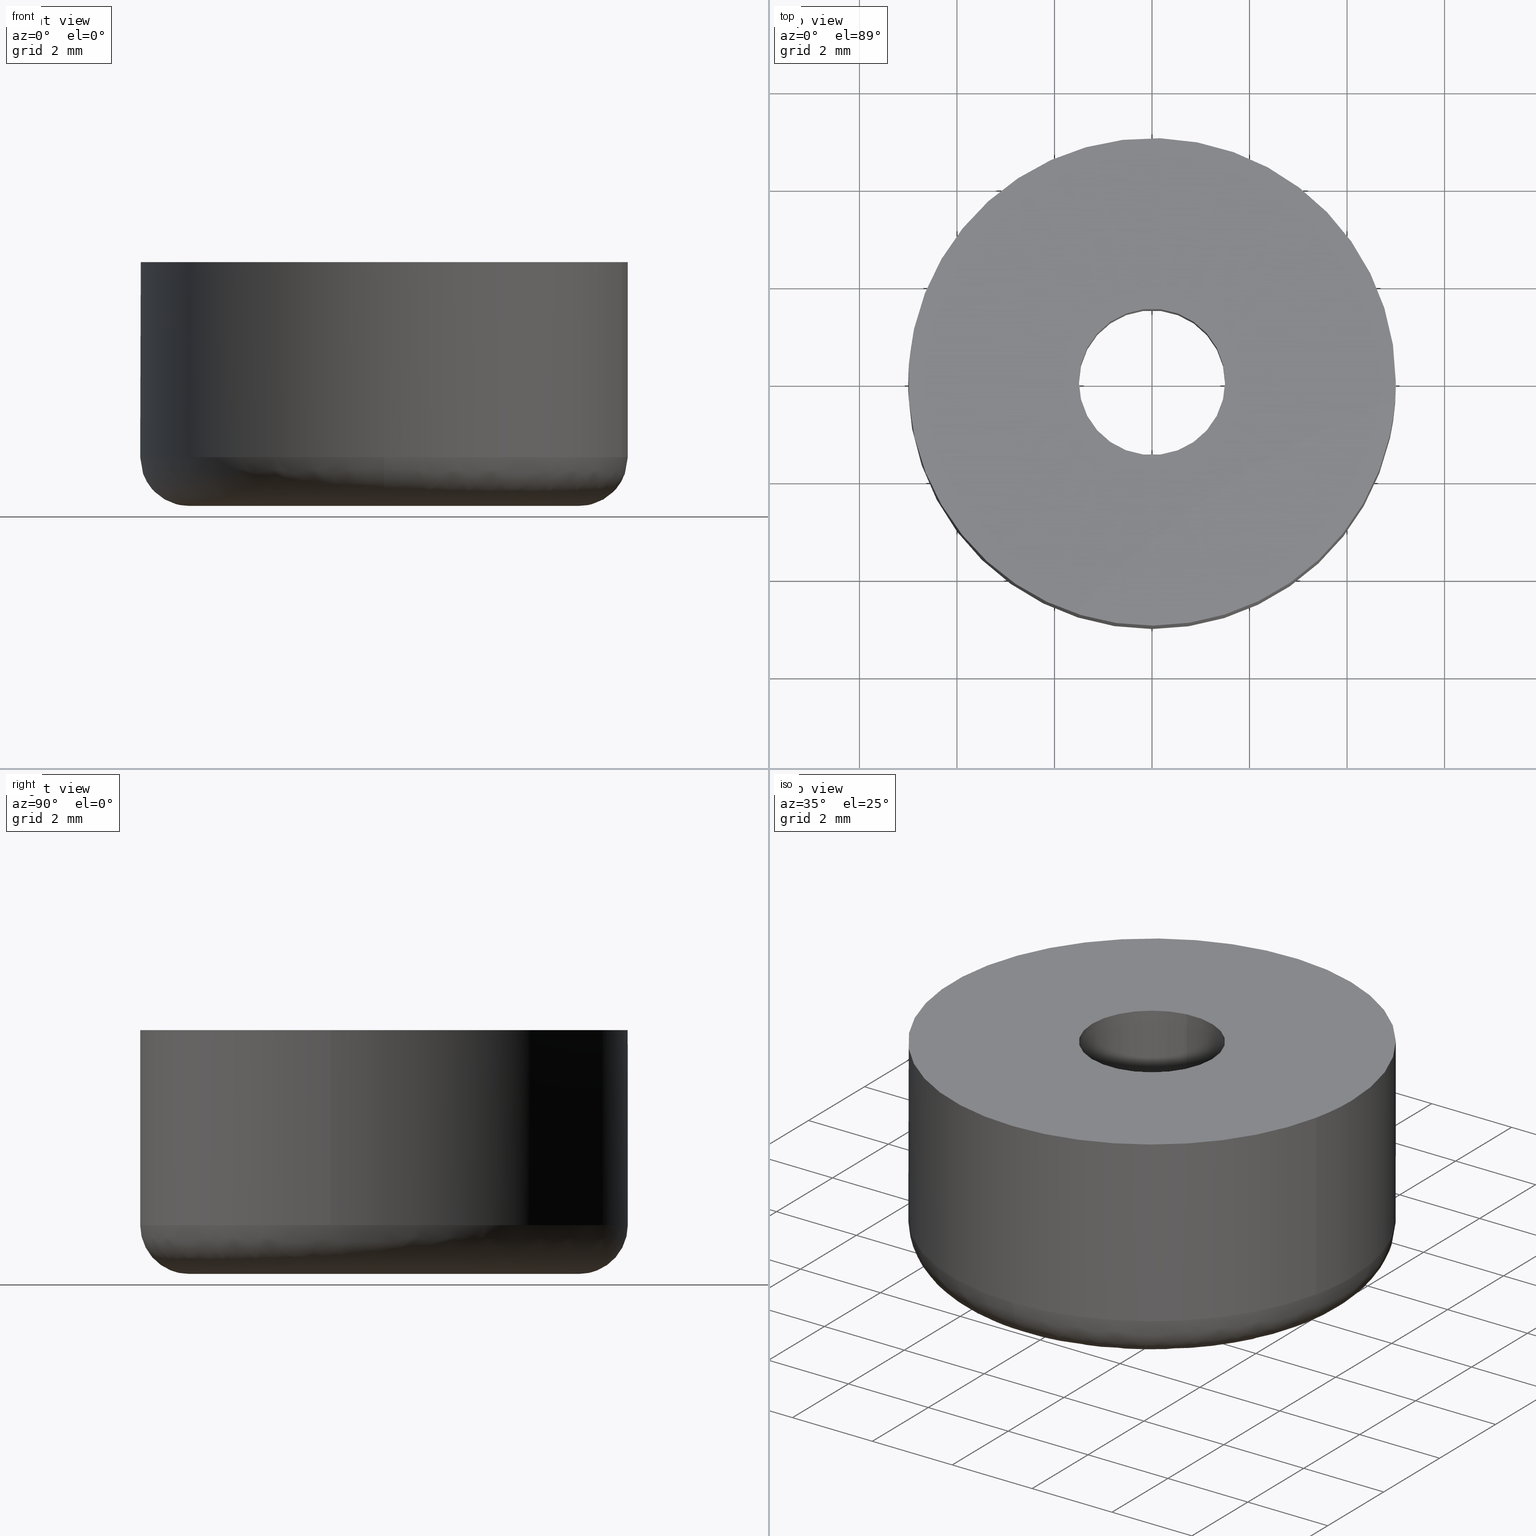
[diagram: canonical four-view strip — front | top / right | iso, engineering-drawing reading convention]
A machine part, canonical four-view strip (front | top / right | iso — engineering-drawing reading convention). The complete STEP part file that produces these views, byte-faithful:
ISO-10303-21;
HEADER;

FILE_DESCRIPTION( (''), '2;1');
FILE_NAME ('PC50.360.TM_TK_10_4141.stp','2019-12-19T16:28:25',(''),(''),'spGate 15.6.1','','');

FILE_SCHEMA (('AUTOMOTIVE_DESIGN'));
ENDSEC;

DATA;
#10=(GEOMETRIC_REPRESENTATION_CONTEXT(3) GLOBAL_UNCERTAINTY_ASSIGNED_CONTEXT((#12)) GLOBAL_UNIT_ASSIGNED_CONTEXT((#13,#14,#15)) REPRESENTATION_CONTEXT('ID1','3D'));
#12=UNCERTAINTY_MEASURE_WITH_UNIT(LENGTH_MEASURE(0.01),#16,'DISTANCE_ACCURACY_VALUE','Maximum model space distance between geometric entities at asserted connectivities');
#13=(NAMED_UNIT(*) SI_UNIT($,.STERADIAN.) SOLID_ANGLE_UNIT());
#14=(CONVERSION_BASED_UNIT('DEGREE',#35) NAMED_UNIT(#36) PLANE_ANGLE_UNIT());
#15=(LENGTH_UNIT() NAMED_UNIT(*) SI_UNIT(.MILLI.,.METRE.));
#16=(LENGTH_UNIT() NAMED_UNIT(*) SI_UNIT(.MILLI.,.METRE.));
#17=AXIS2_PLACEMENT_3D('',#38,#39,#40);
#18=AXIS2_PLACEMENT_3D('',#41,#42,#43);
#19=PRODUCT_DEFINITION('','',#48,#49);
#20=AXIS2_PLACEMENT_3D('',#50,#51,#52);
#21=AXIS2_PLACEMENT_3D('',#53,#54,#55);
#22=SHAPE_REPRESENTATION('Assembly',(#18,#20,#21),#10);
#23=AXIS2_PLACEMENT_3D('',#58,#59,#60);
#24=PRODUCT_DEFINITION('','',#65,#66);
#25=SHAPE_REPRESENTATION('washer',(#23),#10);
#26=ITEM_DEFINED_TRANSFORMATION('','',#20,#23);
#27=(REPRESENTATION_RELATIONSHIP('','',#22,#25) REPRESENTATION_RELATIONSHIP_WITH_TRANSFORMATION(#26) SHAPE_REPRESENTATION_RELATIONSHIP());
#29=AXIS2_PLACEMENT_3D('',#73,#74,#75);
#30=PRODUCT_DEFINITION('','',#80,#81);
#31=SHAPE_REPRESENTATION('rubber foot',(#29),#10);
#32=ITEM_DEFINED_TRANSFORMATION('','',#21,#29);
#33=(REPRESENTATION_RELATIONSHIP('','',#22,#31) REPRESENTATION_RELATIONSHIP_WITH_TRANSFORMATION(#32) SHAPE_REPRESENTATION_RELATIONSHIP());
#35=PLANE_ANGLE_MEASURE_WITH_UNIT(PLANE_ANGLE_MEASURE(0.01745329252),#37);
#36=DIMENSIONAL_EXPONENTS(0.0,0.0,0.0,0.0,0.0,0.0,0.0);
#37=(NAMED_UNIT(*) PLANE_ANGLE_UNIT() SI_UNIT($,.RADIAN.));
#38=CARTESIAN_POINT('',(0.00000000000E+000,0.00000000000E+000,0.00000000000E+000));
#39=DIRECTION('',(0.00000000000E+000,0.00000000000E+000,1.00000000000E+000));
#40=DIRECTION('',(1.00000000000E+000,0.00000000000E+000,0.00000000000E+000));
#41=CARTESIAN_POINT('',(0.00000000000E+000,0.00000000000E+000,0.00000000000E+000));
#42=DIRECTION('',(0.00000000000E+000,0.00000000000E+000,1.00000000000E+000));
#43=DIRECTION('',(1.00000000000E+000,0.00000000000E+000,0.00000000000E+000));
#44=APPLICATION_CONTEXT('configuration controlled 3d designs of mechanical parts and assemblies');
#45=APPLICATION_PROTOCOL_DEFINITION('International Standard','automotive_design',1999,#44);
#46=PRODUCT_CONTEXT('',#44,'');
#47=PRODUCT('Assembly','Assembly','',(#46));
#48=PRODUCT_DEFINITION_FORMATION_WITH_SPECIFIED_SOURCE('','',#47,.NOT_KNOWN.);
#49=PRODUCT_DEFINITION_CONTEXT('design',#44,'');
#50=CARTESIAN_POINT('',(0.00000000000E+000,0.00000000000E+000,0.00000000000E+000));
#51=DIRECTION('',(0.00000000000E+000,0.00000000000E+000,1.00000000000E+000));
#52=DIRECTION('',(1.00000000000E+000,0.00000000000E+000,0.00000000000E+000));
#53=CARTESIAN_POINT('',(0.00000000000E+000,0.00000000000E+000,0.00000000000E+000));
#54=DIRECTION('',(0.00000000000E+000,0.00000000000E+000,1.00000000000E+000));
#55=DIRECTION('',(1.00000000000E+000,0.00000000000E+000,0.00000000000E+000));
#56=PRODUCT_DEFINITION_SHAPE('','',#19);
#57=SHAPE_DEFINITION_REPRESENTATION(#56,#22);
#58=CARTESIAN_POINT('',(0.00000000000E+000,0.00000000000E+000,0.00000000000E+000));
#59=DIRECTION('',(0.00000000000E+000,0.00000000000E+000,1.00000000000E+000));
#60=DIRECTION('',(1.00000000000E+000,0.00000000000E+000,0.00000000000E+000));
#61=APPLICATION_CONTEXT('configuration controlled 3d designs of mechanical parts and assemblies');
#62=APPLICATION_PROTOCOL_DEFINITION('International Standard','automotive_design',1999,#61);
#63=PRODUCT_CONTEXT('',#61,'');
#64=PRODUCT('washer','washer','',(#63));
#65=PRODUCT_DEFINITION_FORMATION_WITH_SPECIFIED_SOURCE('','',#64,.NOT_KNOWN.);
#66=PRODUCT_DEFINITION_CONTEXT('design',#61,'');
#67=PRODUCT_DEFINITION_SHAPE('','',#24);
#68=SHAPE_DEFINITION_REPRESENTATION(#67,#25);
#69=NEXT_ASSEMBLY_USAGE_OCCURRENCE('','','',#19,#24,'');
#70=PRODUCT_DEFINITION_SHAPE('','',#69);
#71=CONTEXT_DEPENDENT_SHAPE_REPRESENTATION(#27,#70);
#73=CARTESIAN_POINT('',(0.00000000000E+000,0.00000000000E+000,0.00000000000E+000));
#74=DIRECTION('',(0.00000000000E+000,0.00000000000E+000,1.00000000000E+000));
#75=DIRECTION('',(1.00000000000E+000,0.00000000000E+000,0.00000000000E+000));
#76=APPLICATION_CONTEXT('configuration controlled 3d designs of mechanical parts and assemblies');
#77=APPLICATION_PROTOCOL_DEFINITION('International Standard','automotive_design',1999,#76);
#78=PRODUCT_CONTEXT('',#76,'');
#79=PRODUCT('rubber foot','rubber foot','',(#78));
#80=PRODUCT_DEFINITION_FORMATION_WITH_SPECIFIED_SOURCE('','',#79,.NOT_KNOWN.);
#81=PRODUCT_DEFINITION_CONTEXT('design',#76,'');
#82=PRODUCT_DEFINITION_SHAPE('','',#30);
#83=SHAPE_DEFINITION_REPRESENTATION(#82,#31);
#84=NEXT_ASSEMBLY_USAGE_OCCURRENCE('','','',#19,#30,'');
#85=PRODUCT_DEFINITION_SHAPE('','',#84);
#86=CONTEXT_DEPENDENT_SHAPE_REPRESENTATION(#33,#85);
#88=SHAPE_REPRESENTATION_RELATIONSHIP('','',#25,#91);
#89=SHAPE_REPRESENTATION_RELATIONSHIP('','',#31,#93);
#90=MANIFOLD_SOLID_BREP('washer',#94);
#91=ADVANCED_BREP_SHAPE_REPRESENTATION('washer',(#90),#10);
#92=MANIFOLD_SOLID_BREP('rubber foot',#103);
#93=ADVANCED_BREP_SHAPE_REPRESENTATION('rubber foot',(#92),#10);
#94=CLOSED_SHELL('',(#112,#113,#114,#115,#116,#117));
#95=COLOUR_RGB('',0.00000000000E+000,0.00000000000E+000,0.00000000000E+000);
#96=FILL_AREA_STYLE_COLOUR('',#95);
#97=FILL_AREA_STYLE('',(#96));
#98=SURFACE_STYLE_FILL_AREA(#97);
#99=SURFACE_SIDE_STYLE('',(#98));
#100=SURFACE_STYLE_USAGE(.BOTH.,#99);
#101=PRESENTATION_STYLE_ASSIGNMENT((#100));
#102=STYLED_ITEM('',(#101),#90);
#103=CLOSED_SHELL('',(#118,#119,#120,#121,#122,#123,#124,#125,#126,#127,#128,#129,#130,#131));
#104=COLOUR_RGB('',0.00000000000E+000,0.00000000000E+000,0.00000000000E+000);
#105=FILL_AREA_STYLE_COLOUR('',#104);
#106=FILL_AREA_STYLE('',(#105));
#107=SURFACE_STYLE_FILL_AREA(#106);
#108=SURFACE_SIDE_STYLE('',(#107));
#109=SURFACE_STYLE_USAGE(.BOTH.,#108);
#110=PRESENTATION_STYLE_ASSIGNMENT((#109));
#111=STYLED_ITEM('',(#110),#92);
#112=ADVANCED_FACE('',(#133,#134),#132,.F.);
#113=ADVANCED_FACE('',(#144,#145),#143,.F.);
#114=ADVANCED_FACE('',(#155),#154,.F.);
#115=ADVANCED_FACE('',(#165),#164,.F.);
#116=ADVANCED_FACE('',(#175),#174,.T.);
#117=ADVANCED_FACE('',(#185),#184,.T.);
#118=ADVANCED_FACE('',(#195,#196),#194,.T.);
#119=ADVANCED_FACE('',(#206,#207),#205,.T.);
#120=ADVANCED_FACE('',(#217,#218),#216,.T.);
#121=ADVANCED_FACE('',(#228,#229),#227,.T.);
#122=ADVANCED_FACE('',(#239),#238,.F.);
#123=ADVANCED_FACE('',(#249),#248,.F.);
#124=ADVANCED_FACE('',(#259),#258,.F.);
#125=ADVANCED_FACE('',(#269),#268,.F.);
#126=ADVANCED_FACE('',(#279),#278,.F.);
#127=ADVANCED_FACE('',(#289),#288,.F.);
#128=ADVANCED_FACE('',(#299),#298,.T.);
#129=ADVANCED_FACE('',(#309),#308,.T.);
#130=ADVANCED_FACE('',(#319),#318,.T.);
#131=ADVANCED_FACE('',(#329),#328,.T.);
#132=PLANE('',#341);
#133=FACE_OUTER_BOUND('',#342,.T.);
#134=FACE_BOUND('',#343,.T.);
#135=COLOUR_RGB('',1.00000000000E+000,1.00000000000E+000,1.00000000000E+000);
#136=FILL_AREA_STYLE_COLOUR('',#135);
#137=FILL_AREA_STYLE('',(#136));
#138=SURFACE_STYLE_FILL_AREA(#137);
#139=SURFACE_SIDE_STYLE('',(#138));
#140=SURFACE_STYLE_USAGE(.BOTH.,#139);
#141=PRESENTATION_STYLE_ASSIGNMENT((#140));
#142=STYLED_ITEM('',(#141),#112);
#143=PLANE('',#347);
#144=FACE_OUTER_BOUND('',#348,.T.);
#145=FACE_BOUND('',#349,.T.);
#146=COLOUR_RGB('',1.00000000000E+000,1.00000000000E+000,1.00000000000E+000);
#147=FILL_AREA_STYLE_COLOUR('',#146);
#148=FILL_AREA_STYLE('',(#147));
#149=SURFACE_STYLE_FILL_AREA(#148);
#150=SURFACE_SIDE_STYLE('',(#149));
#151=SURFACE_STYLE_USAGE(.BOTH.,#150);
#152=PRESENTATION_STYLE_ASSIGNMENT((#151));
#153=STYLED_ITEM('',(#152),#113);
#154=CYLINDRICAL_SURFACE('',#353,1.50000000000E+000);
#155=FACE_OUTER_BOUND('',#354,.T.);
#156=COLOUR_RGB('',1.00000000000E+000,1.00000000000E+000,1.00000000000E+000);
#157=FILL_AREA_STYLE_COLOUR('',#156);
#158=FILL_AREA_STYLE('',(#157));
#159=SURFACE_STYLE_FILL_AREA(#158);
#160=SURFACE_SIDE_STYLE('',(#159));
#161=SURFACE_STYLE_USAGE(.BOTH.,#160);
#162=PRESENTATION_STYLE_ASSIGNMENT((#161));
#163=STYLED_ITEM('',(#162),#114);
#164=CYLINDRICAL_SURFACE('',#358,1.50000000000E+000);
#165=FACE_OUTER_BOUND('',#359,.T.);
#166=COLOUR_RGB('',1.00000000000E+000,1.00000000000E+000,1.00000000000E+000);
#167=FILL_AREA_STYLE_COLOUR('',#166);
#168=FILL_AREA_STYLE('',(#167));
#169=SURFACE_STYLE_FILL_AREA(#168);
#170=SURFACE_SIDE_STYLE('',(#169));
#171=SURFACE_STYLE_USAGE(.BOTH.,#170);
#172=PRESENTATION_STYLE_ASSIGNMENT((#171));
#173=STYLED_ITEM('',(#172),#115);
#174=CYLINDRICAL_SURFACE('',#363,4.00000000000E+000);
#175=FACE_OUTER_BOUND('',#364,.T.);
#176=COLOUR_RGB('',1.00000000000E+000,1.00000000000E+000,1.00000000000E+000);
#177=FILL_AREA_STYLE_COLOUR('',#176);
#178=FILL_AREA_STYLE('',(#177));
#179=SURFACE_STYLE_FILL_AREA(#178);
#180=SURFACE_SIDE_STYLE('',(#179));
#181=SURFACE_STYLE_USAGE(.BOTH.,#180);
#182=PRESENTATION_STYLE_ASSIGNMENT((#181));
#183=STYLED_ITEM('',(#182),#116);
#184=CYLINDRICAL_SURFACE('',#368,4.00000000000E+000);
#185=FACE_OUTER_BOUND('',#369,.T.);
#186=COLOUR_RGB('',1.00000000000E+000,1.00000000000E+000,1.00000000000E+000);
#187=FILL_AREA_STYLE_COLOUR('',#186);
#188=FILL_AREA_STYLE('',(#187));
#189=SURFACE_STYLE_FILL_AREA(#188);
#190=SURFACE_SIDE_STYLE('',(#189));
#191=SURFACE_STYLE_USAGE(.BOTH.,#190);
#192=PRESENTATION_STYLE_ASSIGNMENT((#191));
#193=STYLED_ITEM('',(#192),#117);
#194=PLANE('',#373);
#195=FACE_OUTER_BOUND('',#374,.T.);
#196=FACE_BOUND('',#375,.T.);
#197=COLOUR_RGB('',1.00000000000E+000,1.00000000000E+000,1.00000000000E+000);
#198=FILL_AREA_STYLE_COLOUR('',#197);
#199=FILL_AREA_STYLE('',(#198));
#200=SURFACE_STYLE_FILL_AREA(#199);
#201=SURFACE_SIDE_STYLE('',(#200));
#202=SURFACE_STYLE_USAGE(.BOTH.,#201);
#203=PRESENTATION_STYLE_ASSIGNMENT((#202));
#204=STYLED_ITEM('',(#203),#118);
#205=PLANE('',#379);
#206=FACE_OUTER_BOUND('',#380,.T.);
#207=FACE_BOUND('',#381,.T.);
#208=COLOUR_RGB('',1.00000000000E+000,1.00000000000E+000,1.00000000000E+000);
#209=FILL_AREA_STYLE_COLOUR('',#208);
#210=FILL_AREA_STYLE('',(#209));
#211=SURFACE_STYLE_FILL_AREA(#210);
#212=SURFACE_SIDE_STYLE('',(#211));
#213=SURFACE_STYLE_USAGE(.BOTH.,#212);
#214=PRESENTATION_STYLE_ASSIGNMENT((#213));
#215=STYLED_ITEM('',(#214),#119);
#216=PLANE('',#385);
#217=FACE_OUTER_BOUND('',#386,.T.);
#218=FACE_BOUND('',#387,.T.);
#219=COLOUR_RGB('',1.00000000000E+000,1.00000000000E+000,1.00000000000E+000);
#220=FILL_AREA_STYLE_COLOUR('',#219);
#221=FILL_AREA_STYLE('',(#220));
#222=SURFACE_STYLE_FILL_AREA(#221);
#223=SURFACE_SIDE_STYLE('',(#222));
#224=SURFACE_STYLE_USAGE(.BOTH.,#223);
#225=PRESENTATION_STYLE_ASSIGNMENT((#224));
#226=STYLED_ITEM('',(#225),#120);
#227=PLANE('',#391);
#228=FACE_OUTER_BOUND('',#392,.T.);
#229=FACE_BOUND('',#393,.T.);
#230=COLOUR_RGB('',1.00000000000E+000,1.00000000000E+000,1.00000000000E+000);
#231=FILL_AREA_STYLE_COLOUR('',#230);
#232=FILL_AREA_STYLE('',(#231));
#233=SURFACE_STYLE_FILL_AREA(#232);
#234=SURFACE_SIDE_STYLE('',(#233));
#235=SURFACE_STYLE_USAGE(.BOTH.,#234);
#236=PRESENTATION_STYLE_ASSIGNMENT((#235));
#237=STYLED_ITEM('',(#236),#121);
#238=CYLINDRICAL_SURFACE('',#397,2.50000000000E+000);
#239=FACE_OUTER_BOUND('',#398,.T.);
#240=COLOUR_RGB('',1.00000000000E+000,1.00000000000E+000,1.00000000000E+000);
#241=FILL_AREA_STYLE_COLOUR('',#240);
#242=FILL_AREA_STYLE('',(#241));
#243=SURFACE_STYLE_FILL_AREA(#242);
#244=SURFACE_SIDE_STYLE('',(#243));
#245=SURFACE_STYLE_USAGE(.BOTH.,#244);
#246=PRESENTATION_STYLE_ASSIGNMENT((#245));
#247=STYLED_ITEM('',(#246),#122);
#248=CYLINDRICAL_SURFACE('',#402,2.50000000000E+000);
#249=FACE_OUTER_BOUND('',#403,.T.);
#250=COLOUR_RGB('',1.00000000000E+000,1.00000000000E+000,1.00000000000E+000);
#251=FILL_AREA_STYLE_COLOUR('',#250);
#252=FILL_AREA_STYLE('',(#251));
#253=SURFACE_STYLE_FILL_AREA(#252);
#254=SURFACE_SIDE_STYLE('',(#253));
#255=SURFACE_STYLE_USAGE(.BOTH.,#254);
#256=PRESENTATION_STYLE_ASSIGNMENT((#255));
#257=STYLED_ITEM('',(#256),#123);
#258=CYLINDRICAL_SURFACE('',#407,4.00000000000E+000);
#259=FACE_OUTER_BOUND('',#408,.T.);
#260=COLOUR_RGB('',1.00000000000E+000,1.00000000000E+000,1.00000000000E+000);
#261=FILL_AREA_STYLE_COLOUR('',#260);
#262=FILL_AREA_STYLE('',(#261));
#263=SURFACE_STYLE_FILL_AREA(#262);
#264=SURFACE_SIDE_STYLE('',(#263));
#265=SURFACE_STYLE_USAGE(.BOTH.,#264);
#266=PRESENTATION_STYLE_ASSIGNMENT((#265));
#267=STYLED_ITEM('',(#266),#124);
#268=CYLINDRICAL_SURFACE('',#412,4.00000000000E+000);
#269=FACE_OUTER_BOUND('',#413,.T.);
#270=COLOUR_RGB('',1.00000000000E+000,1.00000000000E+000,1.00000000000E+000);
#271=FILL_AREA_STYLE_COLOUR('',#270);
#272=FILL_AREA_STYLE('',(#271));
#273=SURFACE_STYLE_FILL_AREA(#272);
#274=SURFACE_SIDE_STYLE('',(#273));
#275=SURFACE_STYLE_USAGE(.BOTH.,#274);
#276=PRESENTATION_STYLE_ASSIGNMENT((#275));
#277=STYLED_ITEM('',(#276),#125);
#278=CYLINDRICAL_SURFACE('',#417,1.50000000000E+000);
#279=FACE_OUTER_BOUND('',#418,.T.);
#280=COLOUR_RGB('',1.00000000000E+000,1.00000000000E+000,1.00000000000E+000);
#281=FILL_AREA_STYLE_COLOUR('',#280);
#282=FILL_AREA_STYLE('',(#281));
#283=SURFACE_STYLE_FILL_AREA(#282);
#284=SURFACE_SIDE_STYLE('',(#283));
#285=SURFACE_STYLE_USAGE(.BOTH.,#284);
#286=PRESENTATION_STYLE_ASSIGNMENT((#285));
#287=STYLED_ITEM('',(#286),#126);
#288=CYLINDRICAL_SURFACE('',#422,1.50000000000E+000);
#289=FACE_OUTER_BOUND('',#423,.T.);
#290=COLOUR_RGB('',1.00000000000E+000,1.00000000000E+000,1.00000000000E+000);
#291=FILL_AREA_STYLE_COLOUR('',#290);
#292=FILL_AREA_STYLE('',(#291));
#293=SURFACE_STYLE_FILL_AREA(#292);
#294=SURFACE_SIDE_STYLE('',(#293));
#295=SURFACE_STYLE_USAGE(.BOTH.,#294);
#296=PRESENTATION_STYLE_ASSIGNMENT((#295));
#297=STYLED_ITEM('',(#296),#127);
#298=CYLINDRICAL_SURFACE('',#427,5.00000223932E+000);
#299=FACE_OUTER_BOUND('',#428,.T.);
#300=COLOUR_RGB('',1.00000000000E+000,1.00000000000E+000,1.00000000000E+000);
#301=FILL_AREA_STYLE_COLOUR('',#300);
#302=FILL_AREA_STYLE('',(#301));
#303=SURFACE_STYLE_FILL_AREA(#302);
#304=SURFACE_SIDE_STYLE('',(#303));
#305=SURFACE_STYLE_USAGE(.BOTH.,#304);
#306=PRESENTATION_STYLE_ASSIGNMENT((#305));
#307=STYLED_ITEM('',(#306),#128);
#308=CYLINDRICAL_SURFACE('',#432,5.00000223932E+000);
#309=FACE_OUTER_BOUND('',#433,.T.);
#310=COLOUR_RGB('',1.00000000000E+000,1.00000000000E+000,1.00000000000E+000);
#311=FILL_AREA_STYLE_COLOUR('',#310);
#312=FILL_AREA_STYLE('',(#311));
#313=SURFACE_STYLE_FILL_AREA(#312);
#314=SURFACE_SIDE_STYLE('',(#313));
#315=SURFACE_STYLE_USAGE(.BOTH.,#314);
#316=PRESENTATION_STYLE_ASSIGNMENT((#315));
#317=STYLED_ITEM('',(#316),#129);
#318=( BOUNDED_SURFACE() B_SPLINE_SURFACE( 2,2,((#434,#435,#436,#437,#438),(#439,#440,#441,#442,#443),(#444,#445,#446,#447,#448),(#449,#450,#451,#452,#453),(#454,#455,#456,#457,#458)), .UNSPECIFIED.,.F.,.F.,.F.) B_SPLINE_SURFACE_WITH_KNOTS((3,2,3),(3,2,3),(-5.02449880769E-006,1.04719587636E+000,1.57079946771E+000),(0.00000000000E+000,1.57079632679E+000,3.14159265359E+000), .UNSPECIFIED. ) GEOMETRIC_REPRESENTATION_ITEM() RATIONAL_B_SPLINE_SURFACE(((1.00000000000E+000,7.07106781187E-001,1.00000000000E+000,7.07106781187E-001,1.00000000000E+000),(8.66024566367E-001,6.12371843552E-001,8.66024566367E-001,6.12371843552E-001,8.66024566367E-001),(1.00000000000E+000,7.07106781187E-001,1.00000000000E+000,7.07106781187E-001,1.00000000000E+000),(9.33011881345E-001,6.59739028227E-001,9.33011881345E-001,6.59739028227E-001,9.33011881345E-001),(9.33012283186E-001,6.59739312371E-001,9.33012283186E-001,6.59739312371E-001,9.33012283186E-001))) REPRESENTATION_ITEM('') SURFACE() );
#319=FACE_OUTER_BOUND('',#459,.T.);
#320=COLOUR_RGB('',1.00000000000E+000,1.00000000000E+000,1.00000000000E+000);
#321=FILL_AREA_STYLE_COLOUR('',#320);
#322=FILL_AREA_STYLE('',(#321));
#323=SURFACE_STYLE_FILL_AREA(#322);
#324=SURFACE_SIDE_STYLE('',(#323));
#325=SURFACE_STYLE_USAGE(.BOTH.,#324);
#326=PRESENTATION_STYLE_ASSIGNMENT((#325));
#327=STYLED_ITEM('',(#326),#130);
#328=( BOUNDED_SURFACE() B_SPLINE_SURFACE( 2,2,((#460,#461,#462,#463,#464),(#465,#466,#467,#468,#469),(#470,#471,#472,#473,#474),(#475,#476,#477,#478,#479),(#480,#481,#482,#483,#484)), .UNSPECIFIED.,.F.,.F.,.F.) B_SPLINE_SURFACE_WITH_KNOTS((3,2,3),(3,2,3),(-5.02449880769E-006,1.04719587636E+000,1.57079645909E+000),(3.14159265359E+000,4.71238898038E+000,6.28318530718E+000), .UNSPECIFIED. ) GEOMETRIC_REPRESENTATION_ITEM() RATIONAL_B_SPLINE_SURFACE(((1.00000000000E+000,7.07106781187E-001,1.00000000000E+000,7.07106781187E-001,1.00000000000E+000),(8.66024566367E-001,6.12371843552E-001,8.66024566367E-001,6.12371843552E-001,8.66024566367E-001),(1.00000000000E+000,7.07106781187E-001,1.00000000000E+000,7.07106781187E-001,1.00000000000E+000),(9.33012266257E-001,6.59739300401E-001,9.33012266257E-001,6.59739300401E-001,9.33012266257E-001),(9.33012283183E-001,6.59739312369E-001,9.33012283183E-001,6.59739312369E-001,9.33012283183E-001))) REPRESENTATION_ITEM('') SURFACE() );
#329=FACE_OUTER_BOUND('',#485,.T.);
#330=COLOUR_RGB('',1.00000000000E+000,1.00000000000E+000,1.00000000000E+000);
#331=FILL_AREA_STYLE_COLOUR('',#330);
#332=FILL_AREA_STYLE('',(#331));
#333=SURFACE_STYLE_FILL_AREA(#332);
#334=SURFACE_SIDE_STYLE('',(#333));
#335=SURFACE_STYLE_USAGE(.BOTH.,#334);
#336=PRESENTATION_STYLE_ASSIGNMENT((#335));
#337=STYLED_ITEM('',(#336),#131);
#338=CARTESIAN_POINT('',(9.20000000000E+000,-8.31384387633E+000,3.50000000000E+000));
#339=DIRECTION('',(0.00000000000E+000,0.00000000000E+000,-1.00000000000E+000));
#340=DIRECTION('',(-1.00000000000E+000,0.00000000000E+000,0.00000000000E+000));
#341=AXIS2_PLACEMENT_3D('',#338,#339,#340);
#342=EDGE_LOOP('',(#486,#487,#488));
#343=EDGE_LOOP('',(#489,#490,#491));
#344=CARTESIAN_POINT('',(-5.20000000000E+000,-8.31384387633E+000,3.00000000000E+000));
#345=DIRECTION('',(0.00000000000E+000,0.00000000000E+000,1.00000000000E+000));
#346=DIRECTION('',(1.00000000000E+000,0.00000000000E+000,0.00000000000E+000));
#347=AXIS2_PLACEMENT_3D('',#344,#345,#346);
#348=EDGE_LOOP('',(#492,#493,#494));
#349=EDGE_LOOP('',(#495,#496,#497));
#350=CARTESIAN_POINT('',(3.89981910366E-015,8.44976319764E-016,3.51250000000E+000));
#351=DIRECTION('',(1.63270326226E-014,1.94071531910E-015,1.00000000000E+000));
#352=DIRECTION('',(1.18034234657E-001,-9.93009526364E-001,-4.73316543133E-029));
#353=AXIS2_PLACEMENT_3D('',#350,#351,#352);
#354=EDGE_LOOP('',(#498,#499,#500,#501));
#355=CARTESIAN_POINT('',(3.89981910366E-015,8.44976319764E-016,3.51250000000E+000));
#356=DIRECTION('',(1.63270326226E-014,1.94071531910E-015,1.00000000000E+000));
#357=DIRECTION('',(1.18034234657E-001,-9.93009526364E-001,-4.73316543133E-029));
#358=AXIS2_PLACEMENT_3D('',#355,#356,#357);
#359=EDGE_LOOP('',(#502,#503,#504,#505,#506,#507));
#360=CARTESIAN_POINT('',(1.58368502626E-015,4.30935982100E-016,3.51250000000E+000));
#361=DIRECTION('',(6.13516945391E-015,7.29257889029E-016,1.00000000000E+000));
#362=DIRECTION('',(1.18034234657E-001,-9.93009526364E-001,-2.56379794197E-030));
#363=AXIS2_PLACEMENT_3D('',#360,#361,#362);
#364=EDGE_LOOP('',(#508,#509,#510,#511));
#365=CARTESIAN_POINT('',(1.58368502626E-015,4.30935982100E-016,3.51250000000E+000));
#366=DIRECTION('',(6.13516945391E-015,7.29257889029E-016,1.00000000000E+000));
#367=DIRECTION('',(1.18034234657E-001,-9.93009526364E-001,-2.56379794197E-030));
#368=AXIS2_PLACEMENT_3D('',#365,#366,#367);
#369=EDGE_LOOP('',(#512,#513,#514,#515,#516,#517));
#370=CARTESIAN_POINT('',(9.20000000022E+000,-8.31384387667E+000,0.00000000000E+000));
#371=DIRECTION('',(0.00000000000E+000,0.00000000000E+000,-1.00000000000E+000));
#372=DIRECTION('',(-1.00000000000E+000,0.00000000000E+000,0.00000000000E+000));
#373=AXIS2_PLACEMENT_3D('',#370,#371,#372);
#374=EDGE_LOOP('',(#518,#519,#520));
#375=EDGE_LOOP('',(#521,#522,#523));
#376=CARTESIAN_POINT('',(-5.20000000000E+000,-8.31384387633E+000,3.00000000000E+000));
#377=DIRECTION('',(0.00000000000E+000,0.00000000000E+000,1.00000000000E+000));
#378=DIRECTION('',(1.00000000000E+000,0.00000000000E+000,0.00000000000E+000));
#379=AXIS2_PLACEMENT_3D('',#376,#377,#378);
#380=EDGE_LOOP('',(#524,#525,#526));
#381=EDGE_LOOP('',(#527,#528,#529));
#382=CARTESIAN_POINT('',(9.19999970148E+000,-8.31384333067E+000,3.50000000000E+000));
#383=DIRECTION('',(0.00000000000E+000,0.00000000000E+000,-1.00000000000E+000));
#384=DIRECTION('',(-1.00000000000E+000,0.00000000000E+000,0.00000000000E+000));
#385=AXIS2_PLACEMENT_3D('',#382,#383,#384);
#386=EDGE_LOOP('',(#530,#531,#532));
#387=EDGE_LOOP('',(#533,#534,#535));
#388=CARTESIAN_POINT('',(-1.15000000000E+001,-1.03923048454E+001,5.00000000000E+000));
#389=DIRECTION('',(0.00000000000E+000,0.00000000000E+000,1.00000000000E+000));
#390=DIRECTION('',(1.00000000000E+000,0.00000000000E+000,0.00000000000E+000));
#391=AXIS2_PLACEMENT_3D('',#388,#389,#390);
#392=EDGE_LOOP('',(#536,#537,#538));
#393=EDGE_LOOP('',(#539,#540,#541));
#394=CARTESIAN_POINT('',(4.33468580467E-015,4.89105161793E-016,3.07500000000E+000));
#395=DIRECTION('',(2.58322924375E-015,3.07055953275E-016,1.00000000000E+000));
#396=DIRECTION('',(1.18034234657E-001,-9.93009526364E-001,-4.28943117214E-030));
#397=AXIS2_PLACEMENT_3D('',#394,#395,#396);
#398=EDGE_LOOP('',(#542,#543,#544,#545));
#399=CARTESIAN_POINT('',(4.33468580467E-015,4.89105161793E-016,3.07500000000E+000));
#400=DIRECTION('',(2.58322924375E-015,3.07055953275E-016,1.00000000000E+000));
#401=DIRECTION('',(1.18034234657E-001,-9.93009526364E-001,-4.28943117214E-030));
#402=AXIS2_PLACEMENT_3D('',#399,#400,#401);
#403=EDGE_LOOP('',(#546,#547,#548,#549,#550,#551));
#404=CARTESIAN_POINT('',(1.58368502626E-015,4.30935982100E-016,3.51250000000E+000));
#405=DIRECTION('',(6.13516945391E-015,7.29257889029E-016,1.00000000000E+000));
#406=DIRECTION('',(1.18034234657E-001,-9.93009526364E-001,-2.56379794197E-030));
#407=AXIS2_PLACEMENT_3D('',#404,#405,#406);
#408=EDGE_LOOP('',(#552,#553,#554,#555));
#409=CARTESIAN_POINT('',(1.58368502626E-015,4.30935982100E-016,3.51250000000E+000));
#410=DIRECTION('',(6.13516945391E-015,7.29257889029E-016,1.00000000000E+000));
#411=DIRECTION('',(1.18034234657E-001,-9.93009526364E-001,-2.56379794197E-030));
#412=AXIS2_PLACEMENT_3D('',#409,#410,#411);
#413=EDGE_LOOP('',(#556,#557,#558,#559,#560,#561));
#414=CARTESIAN_POINT('',(5.40075811046E-015,1.02338567258E-015,5.03750000000E+000));
#415=DIRECTION('',(7.34716468017E-015,8.73321893594E-016,1.00000000000E+000));
#416=DIRECTION('',(1.18034234657E-001,-9.93009526364E-001,-2.87934230406E-029));
#417=AXIS2_PLACEMENT_3D('',#414,#415,#416);
#418=EDGE_LOOP('',(#562,#563,#564,#565));
#419=CARTESIAN_POINT('',(5.40075811046E-015,1.02338567258E-015,5.03750000000E+000));
#420=DIRECTION('',(7.34716468017E-015,8.73321893594E-016,1.00000000000E+000));
#421=DIRECTION('',(1.18034234657E-001,-9.93009526364E-001,-2.87934230406E-029));
#422=AXIS2_PLACEMENT_3D('',#419,#420,#421);
#423=EDGE_LOOP('',(#566,#567,#568,#569,#570,#571));
#424=CARTESIAN_POINT('',(-1.82499951851E-006,2.10261817881E-006,5.00000000000E+000));
#425=DIRECTION('',(-3.91191233359E-016,2.85891110639E-016,1.00000000000E+000));
#426=DIRECTION('',(-9.75968852868E-001,2.17910069136E-001,-4.44089010958E-016));
#427=AXIS2_PLACEMENT_3D('',#424,#425,#426);
#428=EDGE_LOOP('',(#572,#573,#574,#575,#576,#577,#578));
#429=CARTESIAN_POINT('',(-1.82499951851E-006,2.10261817881E-006,5.00000000000E+000));
#430=DIRECTION('',(-3.91191233359E-016,2.85891110639E-016,1.00000000000E+000));
#431=DIRECTION('',(-9.75968852868E-001,2.17910069136E-001,-4.44089010958E-016));
#432=AXIS2_PLACEMENT_3D('',#429,#430,#431);
#433=EDGE_LOOP('',(#579,#580,#581,#582,#583,#584,#585,#586));
#434=CARTESIAN_POINT('',(-1.05465745083E-015,-4.99999999999E+000,1.00000502450E+000));
#435=CARTESIAN_POINT('',(4.99999999999E+000,-4.99999999999E+000,1.00000502450E+000));
#436=CARTESIAN_POINT('',(4.99999999999E+000,2.34702687631E-015,1.00000502450E+000));
#437=CARTESIAN_POINT('',(4.99999999999E+000,4.99999999999E+000,1.00000502450E+000));
#438=CARTESIAN_POINT('',(-2.27926380464E-015,4.99999999999E+000,1.00000502450E+000));
#439=CARTESIAN_POINT('',(-1.07907052029E-015,-5.00000290089E+000,4.22652522204E-001));
#440=CARTESIAN_POINT('',(5.00000290089E+000,-5.00000290089E+000,4.22652522204E-001));
#441=CARTESIAN_POINT('',(5.00000290089E+000,2.32135474550E-015,4.22652522204E-001));
#442=CARTESIAN_POINT('',(5.00000290089E+000,5.00000290089E+000,4.22652522204E-001));
#443=CARTESIAN_POINT('',(-2.30367758460E-015,5.00000290089E+000,4.22652522204E-001));
#444=CARTESIAN_POINT('',(-1.15250776337E-015,-4.50000145045E+000,1.33975433633E-001));
#445=CARTESIAN_POINT('',(4.50000145045E+000,-4.50000145045E+000,1.33975433633E-001));
#446=CARTESIAN_POINT('',(4.50000145045E+000,2.24728796992E-015,1.33975433633E-001));
#447=CARTESIAN_POINT('',(4.50000145045E+000,4.50000145045E+000,1.33975433633E-001));
#448=CARTESIAN_POINT('',(-2.25465383705E-015,4.50000145045E+000,1.33975433633E-001));
#449=CARTESIAN_POINT('',(-1.18659030796E-015,-4.26794859803E+000,-8.61378442946E-007));
#450=CARTESIAN_POINT('',(4.26794859803E+000,-4.26794859803E+000,-8.61378443120E-007));
#451=CARTESIAN_POINT('',(4.26794859803E+000,2.21291325656E-015,-8.61378443348E-007));
#452=CARTESIAN_POINT('',(4.26794859803E+000,4.26794859803E+000,-8.61378443541E-007));
#453=CARTESIAN_POINT('',(-2.23190170214E-015,4.26794859803E+000,-8.61378443378E-007));
#454=CARTESIAN_POINT('',(-1.21940382077E-015,-3.99999678530E+000,5.16981244410E-012));
#455=CARTESIAN_POINT('',(3.99999678530E+000,-3.99999678530E+000,5.16964354738E-012));
#456=CARTESIAN_POINT('',(3.99999678530E+000,2.18009974562E-015,5.16945546424E-012));
#457=CARTESIAN_POINT('',(3.99999678530E+000,3.99999678530E+000,5.16928068955E-012));
#458=CARTESIAN_POINT('',(-2.19908811648E-015,3.99999678530E+000,5.16944059012E-012));
#459=EDGE_LOOP('',(#587,#588,#589,#590,#591,#592));
#460=CARTESIAN_POINT('',(-2.27926380464E-015,4.99999999999E+000,1.00000502450E+000));
#461=CARTESIAN_POINT('',(-4.99999999999E+000,4.99999999999E+000,1.00000502450E+000));
#462=CARTESIAN_POINT('',(-4.99999999999E+000,1.12242052249E-015,1.00000502450E+000));
#463=CARTESIAN_POINT('',(-4.99999999999E+000,-4.99999999999E+000,1.00000502450E+000));
#464=CARTESIAN_POINT('',(-1.05465745083E-015,-4.99999999999E+000,1.00000502450E+000));
#465=CARTESIAN_POINT('',(-2.30367758460E-015,5.00000290089E+000,4.22652522204E-001));
#466=CARTESIAN_POINT('',(-5.00000290089E+000,5.00000290089E+000,4.22652522204E-001));
#467=CARTESIAN_POINT('',(-5.00000290089E+000,1.09674768119E-015,4.22652522204E-001));
#468=CARTESIAN_POINT('',(-5.00000290089E+000,-5.00000290089E+000,4.22652522204E-001));
#469=CARTESIAN_POINT('',(-1.07907052029E-015,-5.00000290089E+000,4.22652522204E-001));
#470=CARTESIAN_POINT('',(-2.25465383705E-015,4.50000145045E+000,1.33975433633E-001));
#471=CARTESIAN_POINT('',(-4.50000145045E+000,4.50000145045E+000,1.33975433633E-001));
#472=CARTESIAN_POINT('',(-4.50000145045E+000,1.14514189624E-015,1.33975433633E-001));
#473=CARTESIAN_POINT('',(-4.50000145045E+000,-4.50000145045E+000,1.33975433633E-001));
#474=CARTESIAN_POINT('',(-1.15250776337E-015,-4.50000145045E+000,1.33975433633E-001));
#475=CARTESIAN_POINT('',(-2.23190184226E-015,4.26795002713E+000,-3.62823375291E-008));
#476=CARTESIAN_POINT('',(-4.26795002713E+000,4.26795002713E+000,-3.62823373136E-008));
#477=CARTESIAN_POINT('',(-4.26795002713E+000,1.16760172405E-015,-3.62823371275E-008));
#478=CARTESIAN_POINT('',(-4.26795002713E+000,-4.26795002713E+000,-3.62823368929E-008));
#479=CARTESIAN_POINT('',(-1.18659009806E-015,-4.26795002713E+000,-3.62823370978E-008));
#480=CARTESIAN_POINT('',(-2.19908849357E-015,3.99999986459E+000,1.14730356870E-014));
#481=CARTESIAN_POINT('',(-3.99999986459E+000,3.99999986459E+000,1.16549580484E-014));
#482=CARTESIAN_POINT('',(-3.99999986459E+000,1.20041507282E-015,1.18300158720E-014));
#483=CARTESIAN_POINT('',(-3.99999986459E+000,-3.99999986459E+000,1.20125574492E-014));
#484=CARTESIAN_POINT('',(-1.21940344368E-015,-3.99999986459E+000,1.18448900433E-014));
#485=EDGE_LOOP('',(#593,#594,#595,#596,#597,#598,#599,#600,#601));
#486=ORIENTED_EDGE('',*,*,#602,.F.);
#487=ORIENTED_EDGE('',*,*,#603,.F.);
#488=ORIENTED_EDGE('',*,*,#604,.F.);
#489=ORIENTED_EDGE('',*,*,#605,.T.);
#490=ORIENTED_EDGE('',*,*,#606,.T.);
#491=ORIENTED_EDGE('',*,*,#607,.T.);
#492=ORIENTED_EDGE('',*,*,#608,.T.);
#493=ORIENTED_EDGE('',*,*,#609,.T.);
#494=ORIENTED_EDGE('',*,*,#610,.T.);
#495=ORIENTED_EDGE('',*,*,#611,.F.);
#496=ORIENTED_EDGE('',*,*,#612,.F.);
#497=ORIENTED_EDGE('',*,*,#613,.F.);
#498=ORIENTED_EDGE('',*,*,#612,.T.);
#499=ORIENTED_EDGE('',*,*,#614,.T.);
#500=ORIENTED_EDGE('',*,*,#606,.F.);
#501=ORIENTED_EDGE('',*,*,#615,.F.);
#502=ORIENTED_EDGE('',*,*,#605,.F.);
#503=ORIENTED_EDGE('',*,*,#607,.F.);
#504=ORIENTED_EDGE('',*,*,#614,.F.);
#505=ORIENTED_EDGE('',*,*,#611,.T.);
#506=ORIENTED_EDGE('',*,*,#613,.T.);
#507=ORIENTED_EDGE('',*,*,#615,.T.);
#508=ORIENTED_EDGE('',*,*,#603,.T.);
#509=ORIENTED_EDGE('',*,*,#616,.F.);
#510=ORIENTED_EDGE('',*,*,#609,.F.);
#511=ORIENTED_EDGE('',*,*,#617,.T.);
#512=ORIENTED_EDGE('',*,*,#608,.F.);
#513=ORIENTED_EDGE('',*,*,#610,.F.);
#514=ORIENTED_EDGE('',*,*,#616,.T.);
#515=ORIENTED_EDGE('',*,*,#602,.T.);
#516=ORIENTED_EDGE('',*,*,#604,.T.);
#517=ORIENTED_EDGE('',*,*,#617,.F.);
#518=ORIENTED_EDGE('',*,*,#618,.T.);
#519=ORIENTED_EDGE('',*,*,#619,.T.);
#520=ORIENTED_EDGE('',*,*,#620,.T.);
#521=ORIENTED_EDGE('',*,*,#621,.F.);
#522=ORIENTED_EDGE('',*,*,#622,.F.);
#523=ORIENTED_EDGE('',*,*,#623,.F.);
#524=ORIENTED_EDGE('',*,*,#624,.F.);
#525=ORIENTED_EDGE('',*,*,#625,.F.);
#526=ORIENTED_EDGE('',*,*,#626,.F.);
#527=ORIENTED_EDGE('',*,*,#627,.T.);
#528=ORIENTED_EDGE('',*,*,#628,.T.);
#529=ORIENTED_EDGE('',*,*,#629,.T.);
#530=ORIENTED_EDGE('',*,*,#630,.T.);
#531=ORIENTED_EDGE('',*,*,#631,.T.);
#532=ORIENTED_EDGE('',*,*,#632,.T.);
#533=ORIENTED_EDGE('',*,*,#633,.F.);
#534=ORIENTED_EDGE('',*,*,#634,.F.);
#535=ORIENTED_EDGE('',*,*,#635,.F.);
#536=ORIENTED_EDGE('',*,*,#636,.F.);
#537=ORIENTED_EDGE('',*,*,#637,.F.);
#538=ORIENTED_EDGE('',*,*,#638,.F.);
#539=ORIENTED_EDGE('',*,*,#639,.T.);
#540=ORIENTED_EDGE('',*,*,#640,.T.);
#541=ORIENTED_EDGE('',*,*,#641,.T.);
#542=ORIENTED_EDGE('',*,*,#622,.T.);
#543=ORIENTED_EDGE('',*,*,#642,.T.);
#544=ORIENTED_EDGE('',*,*,#628,.F.);
#545=ORIENTED_EDGE('',*,*,#643,.F.);
#546=ORIENTED_EDGE('',*,*,#627,.F.);
#547=ORIENTED_EDGE('',*,*,#629,.F.);
#548=ORIENTED_EDGE('',*,*,#642,.F.);
#549=ORIENTED_EDGE('',*,*,#621,.T.);
#550=ORIENTED_EDGE('',*,*,#623,.T.);
#551=ORIENTED_EDGE('',*,*,#643,.T.);
#552=ORIENTED_EDGE('',*,*,#625,.T.);
#553=ORIENTED_EDGE('',*,*,#644,.T.);
#554=ORIENTED_EDGE('',*,*,#631,.F.);
#555=ORIENTED_EDGE('',*,*,#645,.F.);
#556=ORIENTED_EDGE('',*,*,#630,.F.);
#557=ORIENTED_EDGE('',*,*,#632,.F.);
#558=ORIENTED_EDGE('',*,*,#644,.F.);
#559=ORIENTED_EDGE('',*,*,#624,.T.);
#560=ORIENTED_EDGE('',*,*,#626,.T.);
#561=ORIENTED_EDGE('',*,*,#645,.T.);
#562=ORIENTED_EDGE('',*,*,#634,.T.);
#563=ORIENTED_EDGE('',*,*,#646,.T.);
#564=ORIENTED_EDGE('',*,*,#640,.F.);
#565=ORIENTED_EDGE('',*,*,#647,.F.);
#566=ORIENTED_EDGE('',*,*,#639,.F.);
#567=ORIENTED_EDGE('',*,*,#641,.F.);
#568=ORIENTED_EDGE('',*,*,#646,.F.);
#569=ORIENTED_EDGE('',*,*,#633,.T.);
#570=ORIENTED_EDGE('',*,*,#635,.T.);
#571=ORIENTED_EDGE('',*,*,#647,.T.);
#572=ORIENTED_EDGE('',*,*,#637,.T.);
#573=ORIENTED_EDGE('',*,*,#648,.F.);
#574=ORIENTED_EDGE('',*,*,#649,.F.);
#575=ORIENTED_EDGE('',*,*,#650,.F.);
#576=ORIENTED_EDGE('',*,*,#651,.F.);
#577=ORIENTED_EDGE('',*,*,#652,.F.);
#578=ORIENTED_EDGE('',*,*,#653,.T.);
#579=ORIENTED_EDGE('',*,*,#654,.F.);
#580=ORIENTED_EDGE('',*,*,#655,.F.);
#581=ORIENTED_EDGE('',*,*,#656,.F.);
#582=ORIENTED_EDGE('',*,*,#657,.F.);
#583=ORIENTED_EDGE('',*,*,#648,.T.);
#584=ORIENTED_EDGE('',*,*,#636,.T.);
#585=ORIENTED_EDGE('',*,*,#638,.T.);
#586=ORIENTED_EDGE('',*,*,#653,.F.);
#587=ORIENTED_EDGE('',*,*,#655,.T.);
#588=ORIENTED_EDGE('',*,*,#654,.T.);
#589=ORIENTED_EDGE('',*,*,#652,.T.);
#590=ORIENTED_EDGE('',*,*,#658,.T.);
#591=ORIENTED_EDGE('',*,*,#619,.F.);
#592=ORIENTED_EDGE('',*,*,#659,.F.);
#593=ORIENTED_EDGE('',*,*,#618,.F.);
#594=ORIENTED_EDGE('',*,*,#620,.F.);
#595=ORIENTED_EDGE('',*,*,#658,.F.);
#596=ORIENTED_EDGE('',*,*,#651,.T.);
#597=ORIENTED_EDGE('',*,*,#650,.T.);
#598=ORIENTED_EDGE('',*,*,#649,.T.);
#599=ORIENTED_EDGE('',*,*,#657,.T.);
#600=ORIENTED_EDGE('',*,*,#656,.T.);
#601=ORIENTED_EDGE('',*,*,#659,.T.);
#602=EDGE_CURVE('',#660,#661,#662,.T.);
#603=EDGE_CURVE('',#668,#660,#669,.T.);
#604=EDGE_CURVE('',#661,#668,#675,.T.);
#605=EDGE_CURVE('',#681,#682,#683,.T.);
#606=EDGE_CURVE('',#682,#689,#690,.T.);
#607=EDGE_CURVE('',#689,#681,#696,.T.);
#608=EDGE_CURVE('',#702,#703,#704,.T.);
#609=EDGE_CURVE('',#703,#710,#711,.T.);
#610=EDGE_CURVE('',#710,#702,#717,.T.);
#611=EDGE_CURVE('',#723,#724,#725,.T.);
#612=EDGE_CURVE('',#731,#723,#732,.T.);
#613=EDGE_CURVE('',#724,#731,#738,.T.);
#614=EDGE_CURVE('',#723,#689,#744,.T.);
#615=EDGE_CURVE('',#731,#682,#750,.T.);
#616=EDGE_CURVE('',#710,#660,#756,.T.);
#617=EDGE_CURVE('',#703,#668,#762,.T.);
#618=EDGE_CURVE('',#768,#769,#770,.T.);
#619=EDGE_CURVE('',#769,#776,#777,.T.);
#620=EDGE_CURVE('',#776,#768,#783,.T.);
#621=EDGE_CURVE('',#789,#790,#791,.T.);
#622=EDGE_CURVE('',#797,#789,#798,.T.);
#623=EDGE_CURVE('',#790,#797,#804,.T.);
#624=EDGE_CURVE('',#810,#811,#812,.T.);
#625=EDGE_CURVE('',#818,#810,#819,.T.);
#626=EDGE_CURVE('',#811,#818,#825,.T.);
#627=EDGE_CURVE('',#831,#832,#833,.T.);
#628=EDGE_CURVE('',#832,#839,#840,.T.);
#629=EDGE_CURVE('',#839,#831,#846,.T.);
#630=EDGE_CURVE('',#852,#853,#854,.T.);
#631=EDGE_CURVE('',#853,#860,#861,.T.);
#632=EDGE_CURVE('',#860,#852,#867,.T.);
#633=EDGE_CURVE('',#873,#874,#875,.T.);
#634=EDGE_CURVE('',#881,#873,#882,.T.);
#635=EDGE_CURVE('',#874,#881,#888,.T.);
#636=EDGE_CURVE('',#894,#895,#896,.T.);
#637=EDGE_CURVE('',#902,#894,#903,.T.);
#638=EDGE_CURVE('',#895,#902,#909,.T.);
#639=EDGE_CURVE('',#915,#916,#917,.T.);
#640=EDGE_CURVE('',#916,#923,#924,.T.);
#641=EDGE_CURVE('',#923,#915,#930,.T.);
#642=EDGE_CURVE('',#789,#839,#936,.T.);
#643=EDGE_CURVE('',#797,#832,#942,.T.);
#644=EDGE_CURVE('',#810,#860,#948,.T.);
#645=EDGE_CURVE('',#818,#853,#954,.T.);
#646=EDGE_CURVE('',#873,#923,#960,.T.);
#647=EDGE_CURVE('',#881,#916,#966,.T.);
#648=EDGE_CURVE('',#972,#894,#973,.T.);
#649=EDGE_CURVE('',#979,#972,#980,.T.);
#650=EDGE_CURVE('',#986,#979,#987,.T.);
#651=EDGE_CURVE('',#993,#986,#994,.T.);
#652=EDGE_CURVE('',#1000,#993,#1001,.T.);
#653=EDGE_CURVE('',#1000,#902,#1007,.T.);
#654=EDGE_CURVE('',#1013,#1000,#1014,.T.);
#655=EDGE_CURVE('',#1020,#1013,#1021,.T.);
#656=EDGE_CURVE('',#1027,#1020,#1028,.T.);
#657=EDGE_CURVE('',#972,#1027,#1034,.T.);
#658=EDGE_CURVE('',#993,#776,#1040,.T.);
#659=EDGE_CURVE('',#1020,#769,#1046,.T.);
#660=VERTEX_POINT('',#1052);
#661=VERTEX_POINT('',#1053);
#662=CIRCLE('',#1057,4.00000000000E+000);
#663=COLOUR_RGB('',1.00000000000E+000,1.00000000000E+000,1.00000000000E+000);
#664=DRAUGHTING_PRE_DEFINED_CURVE_FONT('continuous');
#665=CURVE_STYLE( '',#664, POSITIVE_LENGTH_MEASURE(1.00000000000E-006),#663);
#666=PRESENTATION_STYLE_ASSIGNMENT((#665));
#667=STYLED_ITEM('',(#666),#602);
#668=VERTEX_POINT('',#1058);
#669=CIRCLE('',#1062,4.00000000000E+000);
#670=COLOUR_RGB('',1.00000000000E+000,1.00000000000E+000,1.00000000000E+000);
#671=DRAUGHTING_PRE_DEFINED_CURVE_FONT('continuous');
#672=CURVE_STYLE( '',#671, POSITIVE_LENGTH_MEASURE(1.00000000000E-006),#670);
#673=PRESENTATION_STYLE_ASSIGNMENT((#672));
#674=STYLED_ITEM('',(#673),#603);
#675=CIRCLE('',#1066,4.00000000000E+000);
#676=COLOUR_RGB('',1.00000000000E+000,1.00000000000E+000,1.00000000000E+000);
#677=DRAUGHTING_PRE_DEFINED_CURVE_FONT('continuous');
#678=CURVE_STYLE( '',#677, POSITIVE_LENGTH_MEASURE(1.00000000000E-006),#676);
#679=PRESENTATION_STYLE_ASSIGNMENT((#678));
#680=STYLED_ITEM('',(#679),#604);
#681=VERTEX_POINT('',#1067);
#682=VERTEX_POINT('',#1068);
#683=CIRCLE('',#1072,1.50000000000E+000);
#684=COLOUR_RGB('',1.00000000000E+000,1.00000000000E+000,1.00000000000E+000);
#685=DRAUGHTING_PRE_DEFINED_CURVE_FONT('continuous');
#686=CURVE_STYLE( '',#685, POSITIVE_LENGTH_MEASURE(1.00000000000E-006),#684);
#687=PRESENTATION_STYLE_ASSIGNMENT((#686));
#688=STYLED_ITEM('',(#687),#605);
#689=VERTEX_POINT('',#1073);
#690=CIRCLE('',#1077,1.50000000000E+000);
#691=COLOUR_RGB('',1.00000000000E+000,1.00000000000E+000,1.00000000000E+000);
#692=DRAUGHTING_PRE_DEFINED_CURVE_FONT('continuous');
#693=CURVE_STYLE( '',#692, POSITIVE_LENGTH_MEASURE(1.00000000000E-006),#691);
#694=PRESENTATION_STYLE_ASSIGNMENT((#693));
#695=STYLED_ITEM('',(#694),#606);
#696=CIRCLE('',#1081,1.50000000000E+000);
#697=COLOUR_RGB('',1.00000000000E+000,1.00000000000E+000,1.00000000000E+000);
#698=DRAUGHTING_PRE_DEFINED_CURVE_FONT('continuous');
#699=CURVE_STYLE( '',#698, POSITIVE_LENGTH_MEASURE(1.00000000000E-006),#697);
#700=PRESENTATION_STYLE_ASSIGNMENT((#699));
#701=STYLED_ITEM('',(#700),#607);
#702=VERTEX_POINT('',#1082);
#703=VERTEX_POINT('',#1083);
#704=CIRCLE('',#1087,4.00000000000E+000);
#705=COLOUR_RGB('',1.00000000000E+000,1.00000000000E+000,1.00000000000E+000);
#706=DRAUGHTING_PRE_DEFINED_CURVE_FONT('continuous');
#707=CURVE_STYLE( '',#706, POSITIVE_LENGTH_MEASURE(1.00000000000E-006),#705);
#708=PRESENTATION_STYLE_ASSIGNMENT((#707));
#709=STYLED_ITEM('',(#708),#608);
#710=VERTEX_POINT('',#1088);
#711=CIRCLE('',#1092,4.00000000000E+000);
#712=COLOUR_RGB('',1.00000000000E+000,1.00000000000E+000,1.00000000000E+000);
#713=DRAUGHTING_PRE_DEFINED_CURVE_FONT('continuous');
#714=CURVE_STYLE( '',#713, POSITIVE_LENGTH_MEASURE(1.00000000000E-006),#712);
#715=PRESENTATION_STYLE_ASSIGNMENT((#714));
#716=STYLED_ITEM('',(#715),#609);
#717=CIRCLE('',#1096,4.00000000000E+000);
#718=COLOUR_RGB('',1.00000000000E+000,1.00000000000E+000,1.00000000000E+000);
#719=DRAUGHTING_PRE_DEFINED_CURVE_FONT('continuous');
#720=CURVE_STYLE( '',#719, POSITIVE_LENGTH_MEASURE(1.00000000000E-006),#718);
#721=PRESENTATION_STYLE_ASSIGNMENT((#720));
#722=STYLED_ITEM('',(#721),#610);
#723=VERTEX_POINT('',#1097);
#724=VERTEX_POINT('',#1098);
#725=CIRCLE('',#1102,1.50000000000E+000);
#726=COLOUR_RGB('',1.00000000000E+000,1.00000000000E+000,1.00000000000E+000);
#727=DRAUGHTING_PRE_DEFINED_CURVE_FONT('continuous');
#728=CURVE_STYLE( '',#727, POSITIVE_LENGTH_MEASURE(1.00000000000E-006),#726);
#729=PRESENTATION_STYLE_ASSIGNMENT((#728));
#730=STYLED_ITEM('',(#729),#611);
#731=VERTEX_POINT('',#1103);
#732=CIRCLE('',#1107,1.50000000000E+000);
#733=COLOUR_RGB('',1.00000000000E+000,1.00000000000E+000,1.00000000000E+000);
#734=DRAUGHTING_PRE_DEFINED_CURVE_FONT('continuous');
#735=CURVE_STYLE( '',#734, POSITIVE_LENGTH_MEASURE(1.00000000000E-006),#733);
#736=PRESENTATION_STYLE_ASSIGNMENT((#735));
#737=STYLED_ITEM('',(#736),#612);
#738=CIRCLE('',#1111,1.50000000000E+000);
#739=COLOUR_RGB('',1.00000000000E+000,1.00000000000E+000,1.00000000000E+000);
#740=DRAUGHTING_PRE_DEFINED_CURVE_FONT('continuous');
#741=CURVE_STYLE( '',#740, POSITIVE_LENGTH_MEASURE(1.00000000000E-006),#739);
#742=PRESENTATION_STYLE_ASSIGNMENT((#741));
#743=STYLED_ITEM('',(#742),#613);
#744=(BOUNDED_CURVE() B_SPLINE_CURVE(1,(#1112,#1113),.UNSPECIFIED.,.F.,.F.) B_SPLINE_CURVE_WITH_KNOTS((2,2),(8.33334128067E-002,9.16666680514E-001),.UNSPECIFIED.) CURVE() GEOMETRIC_REPRESENTATION_ITEM() RATIONAL_B_SPLINE_CURVE((1.00000000000E+000,1.00000000000E+000)) REPRESENTATION_ITEM('') );
#745=COLOUR_RGB('',1.00000000000E+000,1.00000000000E+000,1.00000000000E+000);
#746=DRAUGHTING_PRE_DEFINED_CURVE_FONT('continuous');
#747=CURVE_STYLE( '',#746, POSITIVE_LENGTH_MEASURE(1.00000000000E-006),#745);
#748=PRESENTATION_STYLE_ASSIGNMENT((#747));
#749=STYLED_ITEM('',(#748),#614);
#750=(BOUNDED_CURVE() B_SPLINE_CURVE(1,(#1114,#1115),.UNSPECIFIED.,.F.,.F.) B_SPLINE_CURVE_WITH_KNOTS((2,2),(8.33333333356E-002,9.16666666667E-001),.UNSPECIFIED.) CURVE() GEOMETRIC_REPRESENTATION_ITEM() RATIONAL_B_SPLINE_CURVE((7.50000000000E-001,7.50000000000E-001)) REPRESENTATION_ITEM('') );
#751=COLOUR_RGB('',1.00000000000E+000,1.00000000000E+000,1.00000000000E+000);
#752=DRAUGHTING_PRE_DEFINED_CURVE_FONT('continuous');
#753=CURVE_STYLE( '',#752, POSITIVE_LENGTH_MEASURE(1.00000000000E-006),#751);
#754=PRESENTATION_STYLE_ASSIGNMENT((#753));
#755=STYLED_ITEM('',(#754),#615);
#756=(BOUNDED_CURVE() B_SPLINE_CURVE(1,(#1116,#1117),.UNSPECIFIED.,.F.,.F.) B_SPLINE_CURVE_WITH_KNOTS((2,2),(8.33334128067E-002,9.16666680514E-001),.UNSPECIFIED.) CURVE() GEOMETRIC_REPRESENTATION_ITEM() RATIONAL_B_SPLINE_CURVE((1.00000000000E+000,1.00000000000E+000)) REPRESENTATION_ITEM('') );
#757=COLOUR_RGB('',1.00000000000E+000,1.00000000000E+000,1.00000000000E+000);
#758=DRAUGHTING_PRE_DEFINED_CURVE_FONT('continuous');
#759=CURVE_STYLE( '',#758, POSITIVE_LENGTH_MEASURE(1.00000000000E-006),#757);
#760=PRESENTATION_STYLE_ASSIGNMENT((#759));
#761=STYLED_ITEM('',(#760),#616);
#762=(BOUNDED_CURVE() B_SPLINE_CURVE(1,(#1118,#1119),.UNSPECIFIED.,.F.,.F.) B_SPLINE_CURVE_WITH_KNOTS((2,2),(8.33333333345E-002,9.16666666667E-001),.UNSPECIFIED.) CURVE() GEOMETRIC_REPRESENTATION_ITEM() RATIONAL_B_SPLINE_CURVE((7.50000000000E-001,7.50000000000E-001)) REPRESENTATION_ITEM('') );
#763=COLOUR_RGB('',1.00000000000E+000,1.00000000000E+000,1.00000000000E+000);
#764=DRAUGHTING_PRE_DEFINED_CURVE_FONT('continuous');
#765=CURVE_STYLE( '',#764, POSITIVE_LENGTH_MEASURE(1.00000000000E-006),#763);
#766=PRESENTATION_STYLE_ASSIGNMENT((#765));
#767=STYLED_ITEM('',(#766),#617);
#768=VERTEX_POINT('',#1120);
#769=VERTEX_POINT('',#1121);
#770=CIRCLE('',#1125,4.00000000016E+000);
#771=COLOUR_RGB('',1.00000000000E+000,1.00000000000E+000,1.00000000000E+000);
#772=DRAUGHTING_PRE_DEFINED_CURVE_FONT('continuous');
#773=CURVE_STYLE( '',#772, POSITIVE_LENGTH_MEASURE(1.00000000000E-006),#771);
#774=PRESENTATION_STYLE_ASSIGNMENT((#773));
#775=STYLED_ITEM('',(#774),#618);
#776=VERTEX_POINT('',#1126);
#777=CIRCLE('',#1130,4.00000000016E+000);
#778=COLOUR_RGB('',1.00000000000E+000,1.00000000000E+000,1.00000000000E+000);
#779=DRAUGHTING_PRE_DEFINED_CURVE_FONT('continuous');
#780=CURVE_STYLE( '',#779, POSITIVE_LENGTH_MEASURE(1.00000000000E-006),#778);
#781=PRESENTATION_STYLE_ASSIGNMENT((#780));
#782=STYLED_ITEM('',(#781),#619);
#783=CIRCLE('',#1134,4.00000000016E+000);
#784=COLOUR_RGB('',1.00000000000E+000,1.00000000000E+000,1.00000000000E+000);
#785=DRAUGHTING_PRE_DEFINED_CURVE_FONT('continuous');
#786=CURVE_STYLE( '',#785, POSITIVE_LENGTH_MEASURE(1.00000000000E-006),#784);
#787=PRESENTATION_STYLE_ASSIGNMENT((#786));
#788=STYLED_ITEM('',(#787),#620);
#789=VERTEX_POINT('',#1135);
#790=VERTEX_POINT('',#1136);
#791=CIRCLE('',#1140,2.50000000000E+000);
#792=COLOUR_RGB('',1.00000000000E+000,1.00000000000E+000,1.00000000000E+000);
#793=DRAUGHTING_PRE_DEFINED_CURVE_FONT('continuous');
#794=CURVE_STYLE( '',#793, POSITIVE_LENGTH_MEASURE(1.00000000000E-006),#792);
#795=PRESENTATION_STYLE_ASSIGNMENT((#794));
#796=STYLED_ITEM('',(#795),#621);
#797=VERTEX_POINT('',#1141);
#798=CIRCLE('',#1145,2.50000000000E+000);
#799=COLOUR_RGB('',1.00000000000E+000,1.00000000000E+000,1.00000000000E+000);
#800=DRAUGHTING_PRE_DEFINED_CURVE_FONT('continuous');
#801=CURVE_STYLE( '',#800, POSITIVE_LENGTH_MEASURE(1.00000000000E-006),#799);
#802=PRESENTATION_STYLE_ASSIGNMENT((#801));
#803=STYLED_ITEM('',(#802),#622);
#804=CIRCLE('',#1149,2.50000000000E+000);
#805=COLOUR_RGB('',1.00000000000E+000,1.00000000000E+000,1.00000000000E+000);
#806=DRAUGHTING_PRE_DEFINED_CURVE_FONT('continuous');
#807=CURVE_STYLE( '',#806, POSITIVE_LENGTH_MEASURE(1.00000000000E-006),#805);
#808=PRESENTATION_STYLE_ASSIGNMENT((#807));
#809=STYLED_ITEM('',(#808),#623);
#810=VERTEX_POINT('',#1150);
#811=VERTEX_POINT('',#1151);
#812=CIRCLE('',#1155,4.00000000000E+000);
#813=COLOUR_RGB('',1.00000000000E+000,1.00000000000E+000,1.00000000000E+000);
#814=DRAUGHTING_PRE_DEFINED_CURVE_FONT('continuous');
#815=CURVE_STYLE( '',#814, POSITIVE_LENGTH_MEASURE(1.00000000000E-006),#813);
#816=PRESENTATION_STYLE_ASSIGNMENT((#815));
#817=STYLED_ITEM('',(#816),#624);
#818=VERTEX_POINT('',#1156);
#819=CIRCLE('',#1160,4.00000000000E+000);
#820=COLOUR_RGB('',1.00000000000E+000,1.00000000000E+000,1.00000000000E+000);
#821=DRAUGHTING_PRE_DEFINED_CURVE_FONT('continuous');
#822=CURVE_STYLE( '',#821, POSITIVE_LENGTH_MEASURE(1.00000000000E-006),#820);
#823=PRESENTATION_STYLE_ASSIGNMENT((#822));
#824=STYLED_ITEM('',(#823),#625);
#825=CIRCLE('',#1164,4.00000000000E+000);
#826=COLOUR_RGB('',1.00000000000E+000,1.00000000000E+000,1.00000000000E+000);
#827=DRAUGHTING_PRE_DEFINED_CURVE_FONT('continuous');
#828=CURVE_STYLE( '',#827, POSITIVE_LENGTH_MEASURE(1.00000000000E-006),#826);
#829=PRESENTATION_STYLE_ASSIGNMENT((#828));
#830=STYLED_ITEM('',(#829),#626);
#831=VERTEX_POINT('',#1165);
#832=VERTEX_POINT('',#1166);
#833=CIRCLE('',#1170,2.50000000000E+000);
#834=COLOUR_RGB('',1.00000000000E+000,1.00000000000E+000,1.00000000000E+000);
#835=DRAUGHTING_PRE_DEFINED_CURVE_FONT('continuous');
#836=CURVE_STYLE( '',#835, POSITIVE_LENGTH_MEASURE(1.00000000000E-006),#834);
#837=PRESENTATION_STYLE_ASSIGNMENT((#836));
#838=STYLED_ITEM('',(#837),#627);
#839=VERTEX_POINT('',#1171);
#840=CIRCLE('',#1175,2.50000000000E+000);
#841=COLOUR_RGB('',1.00000000000E+000,1.00000000000E+000,1.00000000000E+000);
#842=DRAUGHTING_PRE_DEFINED_CURVE_FONT('continuous');
#843=CURVE_STYLE( '',#842, POSITIVE_LENGTH_MEASURE(1.00000000000E-006),#841);
#844=PRESENTATION_STYLE_ASSIGNMENT((#843));
#845=STYLED_ITEM('',(#844),#628);
#846=CIRCLE('',#1179,2.50000000000E+000);
#847=COLOUR_RGB('',1.00000000000E+000,1.00000000000E+000,1.00000000000E+000);
#848=DRAUGHTING_PRE_DEFINED_CURVE_FONT('continuous');
#849=CURVE_STYLE( '',#848, POSITIVE_LENGTH_MEASURE(1.00000000000E-006),#847);
#850=PRESENTATION_STYLE_ASSIGNMENT((#849));
#851=STYLED_ITEM('',(#850),#629);
#852=VERTEX_POINT('',#1180);
#853=VERTEX_POINT('',#1181);
#854=CIRCLE('',#1185,3.99999973747E+000);
#855=COLOUR_RGB('',1.00000000000E+000,1.00000000000E+000,1.00000000000E+000);
#856=DRAUGHTING_PRE_DEFINED_CURVE_FONT('continuous');
#857=CURVE_STYLE( '',#856, POSITIVE_LENGTH_MEASURE(1.00000000000E-006),#855);
#858=PRESENTATION_STYLE_ASSIGNMENT((#857));
#859=STYLED_ITEM('',(#858),#630);
#860=VERTEX_POINT('',#1186);
#861=CIRCLE('',#1190,3.99999973747E+000);
#862=COLOUR_RGB('',1.00000000000E+000,1.00000000000E+000,1.00000000000E+000);
#863=DRAUGHTING_PRE_DEFINED_CURVE_FONT('continuous');
#864=CURVE_STYLE( '',#863, POSITIVE_LENGTH_MEASURE(1.00000000000E-006),#862);
#865=PRESENTATION_STYLE_ASSIGNMENT((#864));
#866=STYLED_ITEM('',(#865),#631);
#867=CIRCLE('',#1194,3.99999973747E+000);
#868=COLOUR_RGB('',1.00000000000E+000,1.00000000000E+000,1.00000000000E+000);
#869=DRAUGHTING_PRE_DEFINED_CURVE_FONT('continuous');
#870=CURVE_STYLE( '',#869, POSITIVE_LENGTH_MEASURE(1.00000000000E-006),#868);
#871=PRESENTATION_STYLE_ASSIGNMENT((#870));
#872=STYLED_ITEM('',(#871),#632);
#873=VERTEX_POINT('',#1195);
#874=VERTEX_POINT('',#1196);
#875=CIRCLE('',#1200,1.50000000000E+000);
#876=COLOUR_RGB('',1.00000000000E+000,1.00000000000E+000,1.00000000000E+000);
#877=DRAUGHTING_PRE_DEFINED_CURVE_FONT('continuous');
#878=CURVE_STYLE( '',#877, POSITIVE_LENGTH_MEASURE(1.00000000000E-006),#876);
#879=PRESENTATION_STYLE_ASSIGNMENT((#878));
#880=STYLED_ITEM('',(#879),#633);
#881=VERTEX_POINT('',#1201);
#882=CIRCLE('',#1205,1.50000000000E+000);
#883=COLOUR_RGB('',1.00000000000E+000,1.00000000000E+000,1.00000000000E+000);
#884=DRAUGHTING_PRE_DEFINED_CURVE_FONT('continuous');
#885=CURVE_STYLE( '',#884, POSITIVE_LENGTH_MEASURE(1.00000000000E-006),#883);
#886=PRESENTATION_STYLE_ASSIGNMENT((#885));
#887=STYLED_ITEM('',(#886),#634);
#888=CIRCLE('',#1209,1.50000000000E+000);
#889=COLOUR_RGB('',1.00000000000E+000,1.00000000000E+000,1.00000000000E+000);
#890=DRAUGHTING_PRE_DEFINED_CURVE_FONT('continuous');
#891=CURVE_STYLE( '',#890, POSITIVE_LENGTH_MEASURE(1.00000000000E-006),#889);
#892=PRESENTATION_STYLE_ASSIGNMENT((#891));
#893=STYLED_ITEM('',(#892),#635);
#894=VERTEX_POINT('',#1210);
#895=VERTEX_POINT('',#1211);
#896=CIRCLE('',#1215,5.00000000000E+000);
#897=COLOUR_RGB('',1.00000000000E+000,1.00000000000E+000,1.00000000000E+000);
#898=DRAUGHTING_PRE_DEFINED_CURVE_FONT('continuous');
#899=CURVE_STYLE( '',#898, POSITIVE_LENGTH_MEASURE(1.00000000000E-006),#897);
#900=PRESENTATION_STYLE_ASSIGNMENT((#899));
#901=STYLED_ITEM('',(#900),#636);
#902=VERTEX_POINT('',#1216);
#903=CIRCLE('',#1220,5.00000000000E+000);
#904=COLOUR_RGB('',1.00000000000E+000,1.00000000000E+000,1.00000000000E+000);
#905=DRAUGHTING_PRE_DEFINED_CURVE_FONT('continuous');
#906=CURVE_STYLE( '',#905, POSITIVE_LENGTH_MEASURE(1.00000000000E-006),#904);
#907=PRESENTATION_STYLE_ASSIGNMENT((#906));
#908=STYLED_ITEM('',(#907),#637);
#909=CIRCLE('',#1224,5.00000000000E+000);
#910=COLOUR_RGB('',1.00000000000E+000,1.00000000000E+000,1.00000000000E+000);
#911=DRAUGHTING_PRE_DEFINED_CURVE_FONT('continuous');
#912=CURVE_STYLE( '',#911, POSITIVE_LENGTH_MEASURE(1.00000000000E-006),#910);
#913=PRESENTATION_STYLE_ASSIGNMENT((#912));
#914=STYLED_ITEM('',(#913),#638);
#915=VERTEX_POINT('',#1225);
#916=VERTEX_POINT('',#1226);
#917=CIRCLE('',#1230,1.50000000000E+000);
#918=COLOUR_RGB('',1.00000000000E+000,1.00000000000E+000,1.00000000000E+000);
#919=DRAUGHTING_PRE_DEFINED_CURVE_FONT('continuous');
#920=CURVE_STYLE( '',#919, POSITIVE_LENGTH_MEASURE(1.00000000000E-006),#918);
#921=PRESENTATION_STYLE_ASSIGNMENT((#920));
#922=STYLED_ITEM('',(#921),#639);
#923=VERTEX_POINT('',#1231);
#924=CIRCLE('',#1235,1.50000000000E+000);
#925=COLOUR_RGB('',1.00000000000E+000,1.00000000000E+000,1.00000000000E+000);
#926=DRAUGHTING_PRE_DEFINED_CURVE_FONT('continuous');
#927=CURVE_STYLE( '',#926, POSITIVE_LENGTH_MEASURE(1.00000000000E-006),#925);
#928=PRESENTATION_STYLE_ASSIGNMENT((#927));
#929=STYLED_ITEM('',(#928),#640);
#930=CIRCLE('',#1239,1.50000000000E+000);
#931=COLOUR_RGB('',1.00000000000E+000,1.00000000000E+000,1.00000000000E+000);
#932=DRAUGHTING_PRE_DEFINED_CURVE_FONT('continuous');
#933=CURVE_STYLE( '',#932, POSITIVE_LENGTH_MEASURE(1.00000000000E-006),#931);
#934=PRESENTATION_STYLE_ASSIGNMENT((#933));
#935=STYLED_ITEM('',(#934),#641);
#936=(BOUNDED_CURVE() B_SPLINE_CURVE(1,(#1240,#1241),.UNSPECIFIED.,.F.,.F.) B_SPLINE_CURVE_WITH_KNOTS((2,2),(8.33333233997E-002,9.16666663280E-001),.UNSPECIFIED.) CURVE() GEOMETRIC_REPRESENTATION_ITEM() RATIONAL_B_SPLINE_CURVE((1.00000000000E+000,1.00000000000E+000)) REPRESENTATION_ITEM('') );
#937=COLOUR_RGB('',1.00000000000E+000,1.00000000000E+000,1.00000000000E+000);
#938=DRAUGHTING_PRE_DEFINED_CURVE_FONT('continuous');
#939=CURVE_STYLE( '',#938, POSITIVE_LENGTH_MEASURE(1.00000000000E-006),#937);
#940=PRESENTATION_STYLE_ASSIGNMENT((#939));
#941=STYLED_ITEM('',(#940),#642);
#942=(BOUNDED_CURVE() B_SPLINE_CURVE(1,(#1242,#1243),.UNSPECIFIED.,.F.,.F.) B_SPLINE_CURVE_WITH_KNOTS((2,2),(8.33333333334E-002,9.16666666667E-001),.UNSPECIFIED.) CURVE() GEOMETRIC_REPRESENTATION_ITEM() RATIONAL_B_SPLINE_CURVE((7.50000000000E-001,7.50000000000E-001)) REPRESENTATION_ITEM('') );
#943=COLOUR_RGB('',1.00000000000E+000,1.00000000000E+000,1.00000000000E+000);
#944=DRAUGHTING_PRE_DEFINED_CURVE_FONT('continuous');
#945=CURVE_STYLE( '',#944, POSITIVE_LENGTH_MEASURE(1.00000000000E-006),#943);
#946=PRESENTATION_STYLE_ASSIGNMENT((#945));
#947=STYLED_ITEM('',(#946),#643);
#948=(BOUNDED_CURVE() B_SPLINE_CURVE(1,(#1244,#1245),.UNSPECIFIED.,.F.,.F.) B_SPLINE_CURVE_WITH_KNOTS((2,2),(8.33334128067E-002,9.16666680514E-001),.UNSPECIFIED.) CURVE() GEOMETRIC_REPRESENTATION_ITEM() RATIONAL_B_SPLINE_CURVE((1.00000000000E+000,1.00000000000E+000)) REPRESENTATION_ITEM('') );
#949=COLOUR_RGB('',1.00000000000E+000,1.00000000000E+000,1.00000000000E+000);
#950=DRAUGHTING_PRE_DEFINED_CURVE_FONT('continuous');
#951=CURVE_STYLE( '',#950, POSITIVE_LENGTH_MEASURE(1.00000000000E-006),#949);
#952=PRESENTATION_STYLE_ASSIGNMENT((#951));
#953=STYLED_ITEM('',(#952),#644);
#954=(BOUNDED_CURVE() B_SPLINE_CURVE(1,(#1246,#1247),.UNSPECIFIED.,.F.,.F.) B_SPLINE_CURVE_WITH_KNOTS((2,2),(8.33333333345E-002,9.16666666667E-001),.UNSPECIFIED.) CURVE() GEOMETRIC_REPRESENTATION_ITEM() RATIONAL_B_SPLINE_CURVE((7.50000000000E-001,7.50000000000E-001)) REPRESENTATION_ITEM('') );
#955=COLOUR_RGB('',1.00000000000E+000,1.00000000000E+000,1.00000000000E+000);
#956=DRAUGHTING_PRE_DEFINED_CURVE_FONT('continuous');
#957=CURVE_STYLE( '',#956, POSITIVE_LENGTH_MEASURE(1.00000000000E-006),#955);
#958=PRESENTATION_STYLE_ASSIGNMENT((#957));
#959=STYLED_ITEM('',(#958),#645);
#960=(BOUNDED_CURVE() B_SPLINE_CURVE(1,(#1248,#1249),.UNSPECIFIED.,.F.,.F.) B_SPLINE_CURVE_WITH_KNOTS((2,2),(8.33333134656E-002,9.16666653270E-001),.UNSPECIFIED.) CURVE() GEOMETRIC_REPRESENTATION_ITEM() RATIONAL_B_SPLINE_CURVE((1.00000000000E+000,1.00000000000E+000)) REPRESENTATION_ITEM('') );
#961=COLOUR_RGB('',1.00000000000E+000,1.00000000000E+000,1.00000000000E+000);
#962=DRAUGHTING_PRE_DEFINED_CURVE_FONT('continuous');
#963=CURVE_STYLE( '',#962, POSITIVE_LENGTH_MEASURE(1.00000000000E-006),#961);
#964=PRESENTATION_STYLE_ASSIGNMENT((#963));
#965=STYLED_ITEM('',(#964),#646);
#966=(BOUNDED_CURVE() B_SPLINE_CURVE(1,(#1250,#1251),.UNSPECIFIED.,.F.,.F.) B_SPLINE_CURVE_WITH_KNOTS((2,2),(8.33333333337E-002,9.16666666667E-001),.UNSPECIFIED.) CURVE() GEOMETRIC_REPRESENTATION_ITEM() RATIONAL_B_SPLINE_CURVE((7.50000000000E-001,7.50000000000E-001)) REPRESENTATION_ITEM('') );
#967=COLOUR_RGB('',1.00000000000E+000,1.00000000000E+000,1.00000000000E+000);
#968=DRAUGHTING_PRE_DEFINED_CURVE_FONT('continuous');
#969=CURVE_STYLE( '',#968, POSITIVE_LENGTH_MEASURE(1.00000000000E-006),#967);
#970=PRESENTATION_STYLE_ASSIGNMENT((#969));
#971=STYLED_ITEM('',(#970),#647);
#972=VERTEX_POINT('',#1252);
#973=(BOUNDED_CURVE() B_SPLINE_CURVE(1,(#1253,#1254),.UNSPECIFIED.,.F.,.F.) B_SPLINE_CURVE_WITH_KNOTS((2,2),(8.33333358172E-002,9.16666671238E-001),.UNSPECIFIED.) CURVE() GEOMETRIC_REPRESENTATION_ITEM() RATIONAL_B_SPLINE_CURVE((1.00000000000E+000,1.00000000000E+000)) REPRESENTATION_ITEM('') );
#974=COLOUR_RGB('',1.00000000000E+000,1.00000000000E+000,1.00000000000E+000);
#975=DRAUGHTING_PRE_DEFINED_CURVE_FONT('continuous');
#976=CURVE_STYLE( '',#975, POSITIVE_LENGTH_MEASURE(1.00000000000E-006),#974);
#977=PRESENTATION_STYLE_ASSIGNMENT((#976));
#978=STYLED_ITEM('',(#977),#648);
#979=VERTEX_POINT('',#1255);
#980=CIRCLE('',#1259,5.00000000000E+000);
#981=COLOUR_RGB('',1.00000000000E+000,1.00000000000E+000,1.00000000000E+000);
#982=DRAUGHTING_PRE_DEFINED_CURVE_FONT('continuous');
#983=CURVE_STYLE( '',#982, POSITIVE_LENGTH_MEASURE(1.00000000000E-006),#981);
#984=PRESENTATION_STYLE_ASSIGNMENT((#983));
#985=STYLED_ITEM('',(#984),#649);
#986=VERTEX_POINT('',#1260);
#987=CIRCLE('',#1264,4.99999999995E+000);
#988=COLOUR_RGB('',1.00000000000E+000,1.00000000000E+000,1.00000000000E+000);
#989=DRAUGHTING_PRE_DEFINED_CURVE_FONT('continuous');
#990=CURVE_STYLE( '',#989, POSITIVE_LENGTH_MEASURE(1.00000000000E-006),#988);
#991=PRESENTATION_STYLE_ASSIGNMENT((#990));
#992=STYLED_ITEM('',(#991),#650);
#993=VERTEX_POINT('',#1265);
#994=CIRCLE('',#1269,5.00000000000E+000);
#995=COLOUR_RGB('',1.00000000000E+000,1.00000000000E+000,1.00000000000E+000);
#996=DRAUGHTING_PRE_DEFINED_CURVE_FONT('continuous');
#997=CURVE_STYLE( '',#996, POSITIVE_LENGTH_MEASURE(1.00000000000E-006),#995);
#998=PRESENTATION_STYLE_ASSIGNMENT((#997));
#999=STYLED_ITEM('',(#998),#651);
#1000=VERTEX_POINT('',#1270);
#1001=CIRCLE('',#1274,5.00000000000E+000);
#1002=COLOUR_RGB('',1.00000000000E+000,1.00000000000E+000,1.00000000000E+000);
#1003=DRAUGHTING_PRE_DEFINED_CURVE_FONT('continuous');
#1004=CURVE_STYLE( '',#1003, POSITIVE_LENGTH_MEASURE(1.00000000000E-006),#1002);
#1005=PRESENTATION_STYLE_ASSIGNMENT((#1004));
#1006=STYLED_ITEM('',(#1005),#652);
#1007=(BOUNDED_CURVE() B_SPLINE_CURVE(1,(#1275,#1276),.UNSPECIFIED.,.F.,.F.) B_SPLINE_CURVE_WITH_KNOTS((2,2),(8.33333334611E-002,9.16666666667E-001),.UNSPECIFIED.) CURVE() GEOMETRIC_REPRESENTATION_ITEM() RATIONAL_B_SPLINE_CURVE((7.50000000000E-001,7.50000000000E-001)) REPRESENTATION_ITEM('') );
#1008=COLOUR_RGB('',1.00000000000E+000,1.00000000000E+000,1.00000000000E+000);
#1009=DRAUGHTING_PRE_DEFINED_CURVE_FONT('continuous');
#1010=CURVE_STYLE( '',#1009, POSITIVE_LENGTH_MEASURE(1.00000000000E-006),#1008);
#1011=PRESENTATION_STYLE_ASSIGNMENT((#1010));
#1012=STYLED_ITEM('',(#1011),#653);
#1013=VERTEX_POINT('',#1277);
#1014=CIRCLE('',#1281,5.00000000000E+000);
#1015=COLOUR_RGB('',1.00000000000E+000,1.00000000000E+000,1.00000000000E+000);
#1016=DRAUGHTING_PRE_DEFINED_CURVE_FONT('continuous');
#1017=CURVE_STYLE( '',#1016, POSITIVE_LENGTH_MEASURE(1.00000000000E-006),#1015);
#1018=PRESENTATION_STYLE_ASSIGNMENT((#1017));
#1019=STYLED_ITEM('',(#1018),#654);
#1020=VERTEX_POINT('',#1282);
#1021=CIRCLE('',#1286,5.00000000000E+000);
#1022=COLOUR_RGB('',1.00000000000E+000,1.00000000000E+000,1.00000000000E+000);
#1023=DRAUGHTING_PRE_DEFINED_CURVE_FONT('continuous');
#1024=CURVE_STYLE( '',#1023, POSITIVE_LENGTH_MEASURE(1.00000000000E-006),#1022);
#1025=PRESENTATION_STYLE_ASSIGNMENT((#1024));
#1026=STYLED_ITEM('',(#1025),#655);
#1027=VERTEX_POINT('',#1287);
#1028=CIRCLE('',#1291,5.00000000000E+000);
#1029=COLOUR_RGB('',1.00000000000E+000,1.00000000000E+000,1.00000000000E+000);
#1030=DRAUGHTING_PRE_DEFINED_CURVE_FONT('continuous');
#1031=CURVE_STYLE( '',#1030, POSITIVE_LENGTH_MEASURE(1.00000000000E-006),#1029);
#1032=PRESENTATION_STYLE_ASSIGNMENT((#1031));
#1033=STYLED_ITEM('',(#1032),#656);
#1034=CIRCLE('',#1295,5.00000000000E+000);
#1035=COLOUR_RGB('',1.00000000000E+000,1.00000000000E+000,1.00000000000E+000);
#1036=DRAUGHTING_PRE_DEFINED_CURVE_FONT('continuous');
#1037=CURVE_STYLE( '',#1036, POSITIVE_LENGTH_MEASURE(1.00000000000E-006),#1035);
#1038=PRESENTATION_STYLE_ASSIGNMENT((#1037));
#1039=STYLED_ITEM('',(#1038),#657);
#1040=(BOUNDED_CURVE() B_SPLINE_CURVE(2,(#1296,#1297,#1298,#1299,#1300),.UNSPECIFIED.,.F.,.F.) B_SPLINE_CURVE_WITH_KNOTS((3,2,3),(2.60229384581E-007,1.04719587636E+000,1.57079628518E+000),.UNSPECIFIED.) CURVE() GEOMETRIC_REPRESENTATION_ITEM() RATIONAL_B_SPLINE_CURVE((1.00000000000E+000,8.66024566367E-001,1.00000000000E+000,9.33012288507E-001,9.33012283183E-001)) REPRESENTATION_ITEM('') );
#1041=COLOUR_RGB('',1.00000000000E+000,1.00000000000E+000,1.00000000000E+000);
#1042=DRAUGHTING_PRE_DEFINED_CURVE_FONT('continuous');
#1043=CURVE_STYLE( '',#1042, POSITIVE_LENGTH_MEASURE(1.00000000000E-006),#1041);
#1044=PRESENTATION_STYLE_ASSIGNMENT((#1043));
#1045=STYLED_ITEM('',(#1044),#658);
#1046=(BOUNDED_CURVE() B_SPLINE_CURVE(2,(#1301,#1302,#1303,#1304,#1305),.UNSPECIFIED.,.F.,.F.) B_SPLINE_CURVE_WITH_KNOTS((3,2,3),(-5.02449880769E-006,1.04719587636E+000,1.57079645909E+000),.UNSPECIFIED.) CURVE() GEOMETRIC_REPRESENTATION_ITEM() RATIONAL_B_SPLINE_CURVE((1.00000000000E+000,8.66024566367E-001,1.00000000000E+000,9.33012266257E-001,9.33012283183E-001)) REPRESENTATION_ITEM('') );
#1047=COLOUR_RGB('',1.00000000000E+000,1.00000000000E+000,1.00000000000E+000);
#1048=DRAUGHTING_PRE_DEFINED_CURVE_FONT('continuous');
#1049=CURVE_STYLE( '',#1048, POSITIVE_LENGTH_MEASURE(1.00000000000E-006),#1047);
#1050=PRESENTATION_STYLE_ASSIGNMENT((#1049));
#1051=STYLED_ITEM('',(#1050),#659);
#1052=CARTESIAN_POINT('',(4.72136900146E-001,-3.97203811003E+000,3.50000000000E+000));
#1053=CARTESIAN_POINT('',(-4.00000000000E+000,1.11022302463E-016,3.50000000000E+000));
#1054=CARTESIAN_POINT('',(2.52020626590E-013,1.14575016141E-013,3.50000000000E+000));
#1055=DIRECTION('',(-2.55910307529E-015,-7.51402883028E-016,-1.00000000000E+000));
#1056=DIRECTION('',(-1.00000000000E+000,-2.82551759767E-014,2.55910307529E-015));
#1057=AXIS2_PLACEMENT_3D('',#1054,#1055,#1056);
#1058=CARTESIAN_POINT('',(-4.72823440180E-001,3.97195644417E+000,3.50000000000E+000));
#1059=CARTESIAN_POINT('',(2.52020626590E-013,1.14575016141E-013,3.50000000000E+000));
#1060=DIRECTION('',(-2.55910307529E-015,-7.51402883028E-016,-1.00000000000E+000));
#1061=DIRECTION('',(-1.00000000000E+000,-2.82551759767E-014,2.55910307529E-015));
#1062=AXIS2_PLACEMENT_3D('',#1059,#1060,#1061);
#1063=CARTESIAN_POINT('',(2.52020626590E-013,1.14575016141E-013,3.50000000000E+000));
#1064=DIRECTION('',(-2.55910307529E-015,-7.51402883028E-016,-1.00000000000E+000));
#1065=DIRECTION('',(-1.00000000000E+000,-2.82551759767E-014,2.55910307529E-015));
#1066=AXIS2_PLACEMENT_3D('',#1063,#1064,#1065);
#1067=CARTESIAN_POINT('',(-1.50000000000E+000,-4.05735558466E-016,3.50000000000E+000));
#1068=CARTESIAN_POINT('',(-1.77308843490E-001,1.48948366020E+000,3.50000000000E+000));
#1069=CARTESIAN_POINT('',(1.50068846239E-012,-2.33923991289E-013,3.50000000000E+000));
#1070=DIRECTION('',(-8.88178419701E-016,4.64840746246E-032,-1.00000000000E+000));
#1071=DIRECTION('',(-1.00000000000E+000,1.55801297789E-013,8.88178419701E-016));
#1072=AXIS2_PLACEMENT_3D('',#1069,#1070,#1071);
#1073=CARTESIAN_POINT('',(1.77050807278E-001,-1.48951435429E+000,3.50000000000E+000));
#1074=CARTESIAN_POINT('',(1.50068846239E-012,-2.33923991289E-013,3.50000000000E+000));
#1075=DIRECTION('',(-8.88178419701E-016,4.64840746246E-032,-1.00000000000E+000));
#1076=DIRECTION('',(-1.00000000000E+000,1.55801297789E-013,8.88178419701E-016));
#1077=AXIS2_PLACEMENT_3D('',#1074,#1075,#1076);
#1078=CARTESIAN_POINT('',(1.50068846239E-012,-2.33923991289E-013,3.50000000000E+000));
#1079=DIRECTION('',(-8.88178419701E-016,4.64840746246E-032,-1.00000000000E+000));
#1080=DIRECTION('',(-1.00000000000E+000,1.55801297789E-013,8.88178419701E-016));
#1081=AXIS2_PLACEMENT_3D('',#1078,#1079,#1080);
#1082=CARTESIAN_POINT('',(-4.00000000000E+000,-1.33226762955E-015,3.00000000000E+000));
#1083=CARTESIAN_POINT('',(-4.72823440180E-001,3.97195644417E+000,3.00000000000E+000));
#1084=CARTESIAN_POINT('',(2.59792187762E-013,1.19682042055E-013,3.00000000000E+000));
#1085=DIRECTION('',(-8.34624853968E-014,-1.21568339360E-014,-1.00000000000E+000));
#1086=DIRECTION('',(-1.00000000000E+000,-2.99066327258E-014,8.34624853968E-014));
#1087=AXIS2_PLACEMENT_3D('',#1084,#1085,#1086);
#1088=CARTESIAN_POINT('',(4.72136900146E-001,-3.97203811003E+000,3.00000000000E+000));
#1089=CARTESIAN_POINT('',(2.59792187762E-013,1.19682042055E-013,3.00000000000E+000));
#1090=DIRECTION('',(-8.34624853968E-014,-1.21568339360E-014,-1.00000000000E+000));
#1091=DIRECTION('',(-1.00000000000E+000,-2.99066327258E-014,8.34624853968E-014));
#1092=AXIS2_PLACEMENT_3D('',#1089,#1090,#1091);
#1093=CARTESIAN_POINT('',(2.59792187762E-013,1.19682042055E-013,3.00000000000E+000));
#1094=DIRECTION('',(-8.34624853968E-014,-1.21568339360E-014,-1.00000000000E+000));
#1095=DIRECTION('',(-1.00000000000E+000,-2.99066327258E-014,8.34624853968E-014));
#1096=AXIS2_PLACEMENT_3D('',#1093,#1094,#1095);
#1097=CARTESIAN_POINT('',(1.77050807278E-001,-1.48951435429E+000,3.00000000000E+000));
#1098=CARTESIAN_POINT('',(-1.49999999999E+000,-9.43689570931E-016,3.00000000000E+000));
#1099=CARTESIAN_POINT('',(2.58493226823E-012,1.17528209387E-012,3.00000000000E+000));
#1100=DIRECTION('',(9.44276650790E-013,1.40861926614E-013,-1.00000000000E+000));
#1101=DIRECTION('',(-1.00000000000E+000,-7.83789699810E-013,-9.44276650790E-013));
#1102=AXIS2_PLACEMENT_3D('',#1099,#1100,#1101);
#1103=CARTESIAN_POINT('',(-1.77308843490E-001,1.48948366020E+000,3.00000000000E+000));
#1104=CARTESIAN_POINT('',(2.58493226823E-012,1.17528209387E-012,3.00000000000E+000));
#1105=DIRECTION('',(9.44276650790E-013,1.40861926614E-013,-1.00000000000E+000));
#1106=DIRECTION('',(-1.00000000000E+000,-7.83789699810E-013,-9.44276650790E-013));
#1107=AXIS2_PLACEMENT_3D('',#1104,#1105,#1106);
#1108=CARTESIAN_POINT('',(2.58493226823E-012,1.17528209387E-012,3.00000000000E+000));
#1109=DIRECTION('',(9.44276650790E-013,1.40861926614E-013,-1.00000000000E+000));
#1110=DIRECTION('',(-1.00000000000E+000,-7.83789699810E-013,-9.44276650790E-013));
#1111=AXIS2_PLACEMENT_3D('',#1108,#1109,#1110);
#1112=CARTESIAN_POINT('',(1.77051351985E-001,-1.48951428955E+000,3.00000004768E+000));
#1113=CARTESIAN_POINT('',(1.77051351985E-001,-1.48951428955E+000,3.50000000831E+000));
#1114=CARTESIAN_POINT('',(-1.77051351985E-001,1.48951428955E+000,3.00000000000E+000));
#1115=CARTESIAN_POINT('',(-1.77051351985E-001,1.48951428955E+000,3.50000000000E+000));
#1116=CARTESIAN_POINT('',(4.72136938627E-001,-3.97203810545E+000,3.00000004768E+000));
#1117=CARTESIAN_POINT('',(4.72136938627E-001,-3.97203810545E+000,3.50000000831E+000));
#1118=CARTESIAN_POINT('',(-4.72136938627E-001,3.97203810545E+000,3.00000000000E+000));
#1119=CARTESIAN_POINT('',(-4.72136938627E-001,3.97203810545E+000,3.50000000000E+000));
#1120=CARTESIAN_POINT('',(-4.00000000032E+000,-4.99600361081E-016,1.52177099518E-014));
#1121=CARTESIAN_POINT('',(-1.47821472410E-010,4.00000000009E+000,-1.87331645785E-016));
#1122=CARTESIAN_POINT('',(-1.61194835258E-010,-6.81554812587E-011,3.11115901998E-016));
#1123=DIRECTION('',(-3.72664851231E-015,-1.24611886928E-016,-1.00000000000E+000));
#1124=DIRECTION('',(-1.00000000000E+000,1.70391131760E-011,3.72664851231E-015));
#1125=AXIS2_PLACEMENT_3D('',#1122,#1123,#1124);
#1126=CARTESIAN_POINT('',(-6.50040060619E-011,-4.00000000023E+000,8.09563449373E-016));
#1127=CARTESIAN_POINT('',(-1.61194835258E-010,-6.81554812587E-011,3.11115901998E-016));
#1128=DIRECTION('',(-3.72664851231E-015,-1.24611886928E-016,-1.00000000000E+000));
#1129=DIRECTION('',(-1.00000000000E+000,1.70391131760E-011,3.72664851231E-015));
#1130=AXIS2_PLACEMENT_3D('',#1127,#1128,#1129);
#1131=CARTESIAN_POINT('',(-1.61194835258E-010,-6.81554812587E-011,3.11115901998E-016));
#1132=DIRECTION('',(-3.72664851231E-015,-1.24611886928E-016,-1.00000000000E+000));
#1133=DIRECTION('',(-1.00000000000E+000,1.70391131760E-011,3.72664851231E-015));
#1134=AXIS2_PLACEMENT_3D('',#1131,#1132,#1133);
#1135=CARTESIAN_POINT('',(2.95084678797E-001,-2.48252392382E+000,6.84156620608E-015));
#1136=CARTESIAN_POINT('',(-2.50000000000E+000,0.00000000000E+000,6.22983057381E-014));
#1137=CARTESIAN_POINT('',(3.31068505943E-013,1.50990331349E-013,5.13154013306E-015));
#1138=DIRECTION('',(-2.28667062420E-014,-3.40687179626E-015,-1.00000000000E+000));
#1139=DIRECTION('',(-1.00000000000E+000,-6.00214322688E-014,2.28667062420E-014));
#1140=AXIS2_PLACEMENT_3D('',#1137,#1138,#1139);
#1141=CARTESIAN_POINT('',(-2.95514653005E-001,2.48247277726E+000,3.43152040372E-015));
#1142=CARTESIAN_POINT('',(3.31068505943E-013,1.50990331349E-013,5.13154013306E-015));
#1143=DIRECTION('',(-2.28667062420E-014,-3.40687179626E-015,-1.00000000000E+000));
#1144=DIRECTION('',(-1.00000000000E+000,-6.00214322688E-014,2.28667062420E-014));
#1145=AXIS2_PLACEMENT_3D('',#1142,#1143,#1144);
#1146=CARTESIAN_POINT('',(3.31068505943E-013,1.50990331349E-013,5.13154013306E-015));
#1147=DIRECTION('',(-2.28667062420E-014,-3.40687179626E-015,-1.00000000000E+000));
#1148=DIRECTION('',(-1.00000000000E+000,-6.00214322688E-014,2.28667062420E-014));
#1149=AXIS2_PLACEMENT_3D('',#1146,#1147,#1148);
#1150=CARTESIAN_POINT('',(4.72136900146E-001,-3.97203811003E+000,3.00000000000E+000));
#1151=CARTESIAN_POINT('',(-4.00000000000E+000,-1.33226762955E-015,3.00000000000E+000));
#1152=CARTESIAN_POINT('',(2.59792187762E-013,1.19682042055E-013,3.00000000000E+000));
#1153=DIRECTION('',(-8.34624853968E-014,-1.21568339360E-014,-1.00000000000E+000));
#1154=DIRECTION('',(-1.00000000000E+000,-2.99066327258E-014,8.34624853968E-014));
#1155=AXIS2_PLACEMENT_3D('',#1152,#1153,#1154);
#1156=CARTESIAN_POINT('',(-4.72823439708E-001,3.97195644423E+000,3.00000000000E+000));
#1157=CARTESIAN_POINT('',(2.59792187762E-013,1.19682042055E-013,3.00000000000E+000));
#1158=DIRECTION('',(-8.34624853968E-014,-1.21568339360E-014,-1.00000000000E+000));
#1159=DIRECTION('',(-1.00000000000E+000,-2.99066327258E-014,8.34624853968E-014));
#1160=AXIS2_PLACEMENT_3D('',#1157,#1158,#1159);
#1161=CARTESIAN_POINT('',(2.59792187762E-013,1.19682042055E-013,3.00000000000E+000));
#1162=DIRECTION('',(-8.34624853968E-014,-1.21568339360E-014,-1.00000000000E+000));
#1163=DIRECTION('',(-1.00000000000E+000,-2.99066327258E-014,8.34624853968E-014));
#1164=AXIS2_PLACEMENT_3D('',#1161,#1162,#1163);
#1165=CARTESIAN_POINT('',(-2.50000000000E+000,-9.72285403288E-016,3.00000000000E+000));
#1166=CARTESIAN_POINT('',(-2.95514653005E-001,2.48247277726E+000,3.00000000000E+000));
#1167=CARTESIAN_POINT('',(6.85007606194E-013,-1.05249142734E-013,3.00000000000E+000));
#1168=DIRECTION('',(-5.32907051820E-016,3.76822190084E-016,-1.00000000000E+000));
#1169=DIRECTION('',(-1.00000000000E+000,4.13891143580E-014,5.32907051820E-016));
#1170=AXIS2_PLACEMENT_3D('',#1167,#1168,#1169);
#1171=CARTESIAN_POINT('',(2.95084678797E-001,-2.48252392382E+000,3.00000000000E+000));
#1172=CARTESIAN_POINT('',(6.85007606194E-013,-1.05249142734E-013,3.00000000000E+000));
#1173=DIRECTION('',(-5.32907051820E-016,3.76822190084E-016,-1.00000000000E+000));
#1174=DIRECTION('',(-1.00000000000E+000,4.13891143580E-014,5.32907051820E-016));
#1175=AXIS2_PLACEMENT_3D('',#1172,#1173,#1174);
#1176=CARTESIAN_POINT('',(6.85007606194E-013,-1.05249142734E-013,3.00000000000E+000));
#1177=DIRECTION('',(-5.32907051820E-016,3.76822190084E-016,-1.00000000000E+000));
#1178=DIRECTION('',(-1.00000000000E+000,4.13891143580E-014,5.32907051820E-016));
#1179=AXIS2_PLACEMENT_3D('',#1176,#1177,#1178);
#1180=CARTESIAN_POINT('',(-3.99999947493E+000,-3.33522604760E-014,3.50000000000E+000));
#1181=CARTESIAN_POINT('',(-4.72823397950E-001,3.97195590660E+000,3.50000000000E+000));
#1182=CARTESIAN_POINT('',(2.62532660944E-007,-2.46966066486E-007,3.50000000000E+000));
#1183=DIRECTION('',(4.44089243844E-016,-7.85046229342E-017,-1.00000000000E+000));
#1184=DIRECTION('',(-1.00000000000E+000,6.17415131472E-008,-4.44089248691E-016));
#1185=AXIS2_PLACEMENT_3D('',#1182,#1183,#1184);
#1186=CARTESIAN_POINT('',(4.72136901759E-001,-3.97203812363E+000,3.50000000000E+000));
#1187=CARTESIAN_POINT('',(2.62532660944E-007,-2.46966066486E-007,3.50000000000E+000));
#1188=DIRECTION('',(4.44089243844E-016,-7.85046229342E-017,-1.00000000000E+000));
#1189=DIRECTION('',(-1.00000000000E+000,6.17415131472E-008,-4.44089248691E-016));
#1190=AXIS2_PLACEMENT_3D('',#1187,#1188,#1189);
#1191=CARTESIAN_POINT('',(2.62532660944E-007,-2.46966066486E-007,3.50000000000E+000));
#1192=DIRECTION('',(4.44089243844E-016,-7.85046229342E-017,-1.00000000000E+000));
#1193=DIRECTION('',(-1.00000000000E+000,6.17415131472E-008,-4.44089248691E-016));
#1194=AXIS2_PLACEMENT_3D('',#1191,#1192,#1193);
#1195=CARTESIAN_POINT('',(1.77050807278E-001,-1.48951435429E+000,3.50000000000E+000));
#1196=CARTESIAN_POINT('',(-1.49999999999E+000,-9.43689570931E-016,3.50000000000E+000));
#1197=CARTESIAN_POINT('',(2.58493226823E-012,1.17528209387E-012,3.50000000000E+000));
#1198=DIRECTION('',(3.29795403702E-013,4.90394143581E-014,-1.00000000000E+000));
#1199=DIRECTION('',(-1.00000000000E+000,-7.83789699810E-013,-3.29795403702E-013));
#1200=AXIS2_PLACEMENT_3D('',#1197,#1198,#1199);
#1201=CARTESIAN_POINT('',(-1.77308843490E-001,1.48948366020E+000,3.50000000000E+000));
#1202=CARTESIAN_POINT('',(2.58493226823E-012,1.17528209387E-012,3.50000000000E+000));
#1203=DIRECTION('',(3.29795403702E-013,4.90394143581E-014,-1.00000000000E+000));
#1204=DIRECTION('',(-1.00000000000E+000,-7.83789699810E-013,-3.29795403702E-013));
#1205=AXIS2_PLACEMENT_3D('',#1202,#1203,#1204);
#1206=CARTESIAN_POINT('',(2.58493226823E-012,1.17528209387E-012,3.50000000000E+000));
#1207=DIRECTION('',(3.29795403702E-013,4.90394143581E-014,-1.00000000000E+000));
#1208=DIRECTION('',(-1.00000000000E+000,-7.83789699810E-013,-3.29795403702E-013));
#1209=AXIS2_PLACEMENT_3D('',#1206,#1207,#1208);
#1210=CARTESIAN_POINT('',(-4.87984431308E+000,1.08955012735E+000,5.00000000000E+000));
#1211=CARTESIAN_POINT('',(5.00000000000E+000,8.88178419700E-016,5.00000000000E+000));
#1212=CARTESIAN_POINT('',(1.60094160151E-012,-2.11741735257E-012,5.00000000000E+000));
#1213=DIRECTION('',(-4.01475910473E-016,-1.67760873158E-016,-1.00000000000E+000));
#1214=DIRECTION('',(1.00000000000E+000,4.23272528138E-013,-4.01475910474E-016));
#1215=AXIS2_PLACEMENT_3D('',#1212,#1213,#1214);
#1216=CARTESIAN_POINT('',(4.87963473175E+000,-1.09048836980E+000,5.00000000000E+000));
#1217=CARTESIAN_POINT('',(1.60094160151E-012,-2.11741735257E-012,5.00000000000E+000));
#1218=DIRECTION('',(-4.01475910473E-016,-1.67760873158E-016,-1.00000000000E+000));
#1219=DIRECTION('',(1.00000000000E+000,4.23272528138E-013,-4.01475910474E-016));
#1220=AXIS2_PLACEMENT_3D('',#1217,#1218,#1219);
#1221=CARTESIAN_POINT('',(1.60094160151E-012,-2.11741735257E-012,5.00000000000E+000));
#1222=DIRECTION('',(-4.01475910473E-016,-1.67760873158E-016,-1.00000000000E+000));
#1223=DIRECTION('',(1.00000000000E+000,4.23272528138E-013,-4.01475910474E-016));
#1224=AXIS2_PLACEMENT_3D('',#1221,#1222,#1223);
#1225=CARTESIAN_POINT('',(-1.50000000000E+000,-4.05735558466E-016,5.00000000000E+000));
#1226=CARTESIAN_POINT('',(-1.77308843490E-001,1.48948366020E+000,5.00000000000E+000));
#1227=CARTESIAN_POINT('',(1.50068846239E-012,-2.33923991289E-013,5.00000000000E+000));
#1228=DIRECTION('',(-1.77635683940E-015,6.28036983474E-016,-1.00000000000E+000));
#1229=DIRECTION('',(-1.00000000000E+000,1.55801297789E-013,1.77635683940E-015));
#1230=AXIS2_PLACEMENT_3D('',#1227,#1228,#1229);
#1231=CARTESIAN_POINT('',(1.77050807278E-001,-1.48951435429E+000,5.00000000000E+000));
#1232=CARTESIAN_POINT('',(1.50068846239E-012,-2.33923991289E-013,5.00000000000E+000));
#1233=DIRECTION('',(-1.77635683940E-015,6.28036983474E-016,-1.00000000000E+000));
#1234=DIRECTION('',(-1.00000000000E+000,1.55801297789E-013,1.77635683940E-015));
#1235=AXIS2_PLACEMENT_3D('',#1232,#1233,#1234);
#1236=CARTESIAN_POINT('',(1.50068846239E-012,-2.33923991289E-013,5.00000000000E+000));
#1237=DIRECTION('',(-1.77635683940E-015,6.28036983474E-016,-1.00000000000E+000));
#1238=DIRECTION('',(-1.00000000000E+000,1.55801297789E-013,1.77635683940E-015));
#1239=AXIS2_PLACEMENT_3D('',#1236,#1237,#1238);
#1240=CARTESIAN_POINT('',(2.95085586642E-001,-2.48252381591E+000,-3.57610832613E-008));
#1241=CARTESIAN_POINT('',(2.95085586642E-001,-2.48252381591E+000,2.99999998781E+000));
#1242=CARTESIAN_POINT('',(-2.95085586642E-001,2.48252381591E+000,2.10942374679E-014));
#1243=CARTESIAN_POINT('',(-2.95085586642E-001,2.48252381591E+000,3.00000000000E+000));
#1244=CARTESIAN_POINT('',(4.72136938627E-001,-3.97203810545E+000,3.00000004768E+000));
#1245=CARTESIAN_POINT('',(4.72136938627E-001,-3.97203810545E+000,3.50000000831E+000));
#1246=CARTESIAN_POINT('',(-4.72136938627E-001,3.97203810545E+000,3.00000000000E+000));
#1247=CARTESIAN_POINT('',(-4.72136938627E-001,3.97203810545E+000,3.50000000000E+000));
#1248=CARTESIAN_POINT('',(1.77051351985E-001,-1.48951428955E+000,3.49999996424E+000));
#1249=CARTESIAN_POINT('',(1.77051351985E-001,-1.48951428955E+000,4.99999997589E+000));
#1250=CARTESIAN_POINT('',(-1.77051351985E-001,1.48951428955E+000,3.50000000000E+000));
#1251=CARTESIAN_POINT('',(-1.77051351985E-001,1.48951428955E+000,5.00000000000E+000));
#1252=CARTESIAN_POINT('',(-4.87984390253E+000,1.08955196613E+000,1.00000000000E+000));
#1253=CARTESIAN_POINT('',(-4.87984827485E+000,1.08955293627E+000,1.00000001190E+000));
#1254=CARTESIAN_POINT('',(-4.87984827485E+000,1.08955293627E+000,5.00000002194E+000));
#1255=CARTESIAN_POINT('',(-5.00000000000E+000,0.00000000000E+000,1.00000000000E+000));
#1256=CARTESIAN_POINT('',(5.22692999994E-013,-5.09814412908E-013,9.99999999981E-001));
#1257=DIRECTION('',(-3.85391718538E-012,9.68161009465E-028,-1.00000000000E+000));
#1258=DIRECTION('',(1.00000000000E+000,-1.01962882582E-013,-3.85391718538E-012));
#1259=AXIS2_PLACEMENT_3D('',#1256,#1257,#1258);
#1260=CARTESIAN_POINT('',(-4.99842094642E+000,-1.25650477218E-001,9.99999999981E-001));
#1261=CARTESIAN_POINT('',(-5.14672748864E-011,-6.13148420925E-013,9.99999940501E-001));
#1262=DIRECTION('',(-1.18998908855E-008,6.36637710442E-015,-1.00000000000E+000));
#1263=DIRECTION('',(9.99684189283E-001,2.51300954437E-002,-1.18961326124E-008));
#1264=AXIS2_PLACEMENT_3D('',#1261,#1262,#1263);
#1265=CARTESIAN_POINT('',(-2.12371853669E-011,-5.00000000000E+000,1.00000000000E+000));
#1266=CARTESIAN_POINT('',(1.64090963040E-012,-2.16937579012E-012,1.00000000000E+000));
#1267=DIRECTION('',(-1.75415275237E-015,-1.84450748510E-015,-1.00000000000E+000));
#1268=DIRECTION('',(-9.75968999961E-001,2.17909410342E-001,1.31006316906E-015));
#1269=AXIS2_PLACEMENT_3D('',#1266,#1267,#1268);
#1270=CARTESIAN_POINT('',(4.87964653504E+000,-1.09043555201E+000,1.00000000000E+000));
#1271=CARTESIAN_POINT('',(1.64090963040E-012,-2.16937579012E-012,1.00000000000E+000));
#1272=DIRECTION('',(-1.75415275237E-015,-1.84450748510E-015,-1.00000000000E+000));
#1273=DIRECTION('',(-9.75968999961E-001,2.17909410342E-001,1.31006316906E-015));
#1274=AXIS2_PLACEMENT_3D('',#1271,#1272,#1273);
#1275=CARTESIAN_POINT('',(4.87984462485E+000,-1.08954873103E+000,1.00000000059E+000));
#1276=CARTESIAN_POINT('',(4.87984462485E+000,-1.08954873103E+000,5.00000000000E+000));
#1277=CARTESIAN_POINT('',(5.00000000000E+000,0.00000000000E+000,1.00000000000E+000));
#1278=CARTESIAN_POINT('',(1.64090963040E-012,-2.16937579012E-012,1.00000000000E+000));
#1279=DIRECTION('',(-1.75415275237E-015,-1.84450748510E-015,-1.00000000000E+000));
#1280=DIRECTION('',(-9.75968999961E-001,2.17909410342E-001,1.31006316906E-015));
#1281=AXIS2_PLACEMENT_3D('',#1278,#1279,#1280);
#1282=CARTESIAN_POINT('',(-6.35795946517E-004,4.99999995958E+000,1.00000000002E+000));
#1283=CARTESIAN_POINT('',(3.99680288865E-015,4.44089209850E-015,9.99999999969E-001));
#1284=DIRECTION('',(2.98800426376E-010,9.99129983372E-012,-1.00000000000E+000));
#1285=DIRECTION('',(2.51300954435E-002,-9.99684189283E-001,-2.47926124075E-012));
#1286=AXIS2_PLACEMENT_3D('',#1283,#1284,#1285);
#1287=CARTESIAN_POINT('',(-1.25650477218E-001,4.99842094642E+000,9.99999999981E-001));
#1288=CARTESIAN_POINT('',(3.99680288865E-015,4.44089209850E-015,9.99999999969E-001));
#1289=DIRECTION('',(2.98800426376E-010,9.99129983372E-012,-1.00000000000E+000));
#1290=DIRECTION('',(2.51300954435E-002,-9.99684189283E-001,-2.47926124075E-012));
#1291=AXIS2_PLACEMENT_3D('',#1288,#1289,#1290);
#1292=CARTESIAN_POINT('',(5.22692999994E-013,-5.09814412908E-013,9.99999999981E-001));
#1293=DIRECTION('',(-3.85391718538E-012,9.68161009465E-028,-1.00000000000E+000));
#1294=DIRECTION('',(1.00000000000E+000,-1.01962882582E-013,-3.85391718538E-012));
#1295=AXIS2_PLACEMENT_3D('',#1292,#1293,#1294);
#1296=CARTESIAN_POINT('',(-1.05465745083E-015,-4.99999999999E+000,1.00000502450E+000));
#1297=CARTESIAN_POINT('',(-1.07907052029E-015,-5.00000290089E+000,4.22652522204E-001));
#1298=CARTESIAN_POINT('',(-1.15250776337E-015,-4.50000145045E+000,1.33975433633E-001));
#1299=CARTESIAN_POINT('',(-1.18659008592E-015,-4.26795010974E+000,1.14118682501E-008));
#1300=CARTESIAN_POINT('',(-1.21940342188E-015,-4.00000004259E+000,3.58428506082E-015));
#1301=CARTESIAN_POINT('',(-2.27926380464E-015,4.99999999999E+000,1.00000502450E+000));
#1302=CARTESIAN_POINT('',(-2.30367758460E-015,5.00000290089E+000,4.22652522204E-001));
#1303=CARTESIAN_POINT('',(-2.25465383705E-015,4.50000145045E+000,1.33975433633E-001));
#1304=CARTESIAN_POINT('',(-2.23190184226E-015,4.26795002713E+000,-3.62823375291E-008));
#1305=CARTESIAN_POINT('',(-2.19908849357E-015,3.99999986459E+000,1.14730356870E-014));
#1306=MECHANICAL_DESIGN_GEOMETRIC_PRESENTATION_REPRESENTATION( '', (#102,#111,#142,#153,#163,#173,#183,#193,#204,#215,#226,#237,#247,#257,#267,#277,#287,#297,#307,#317,#327,#337,#667,#674,#680,#688,#695,#701,#709,#716,#722,#730,#737,#743,#749,#755,#761,#767,#775,#782,#788,#796,#803,#809,#817,#824,#830,#838,#845,#851,#859,#866,#872,#880,#887,#893,#901,#908,#914,#922,#929,#935,#941,#947,#953,#959,#965,#971,#978,#985,#992,#999,#1006,#1012,#1019,#1026,#1033,#1039,#1045,#1051),#10);
ENDSEC;
END-ISO-10303-21;
